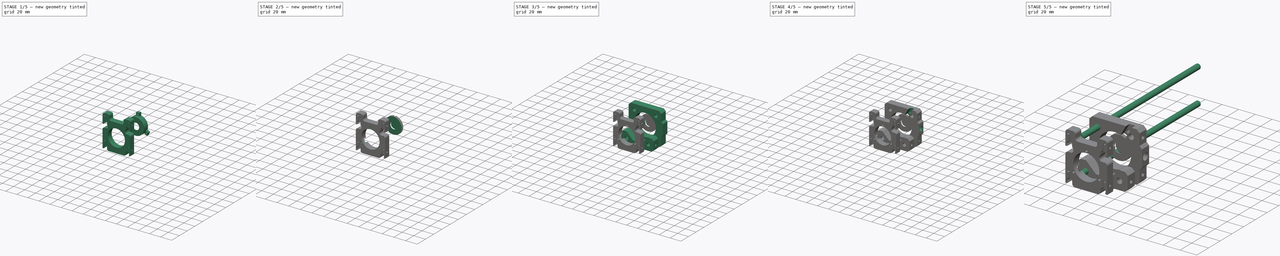
[diagram: build sequence overview — one tinted view per stage of 5, left to right]
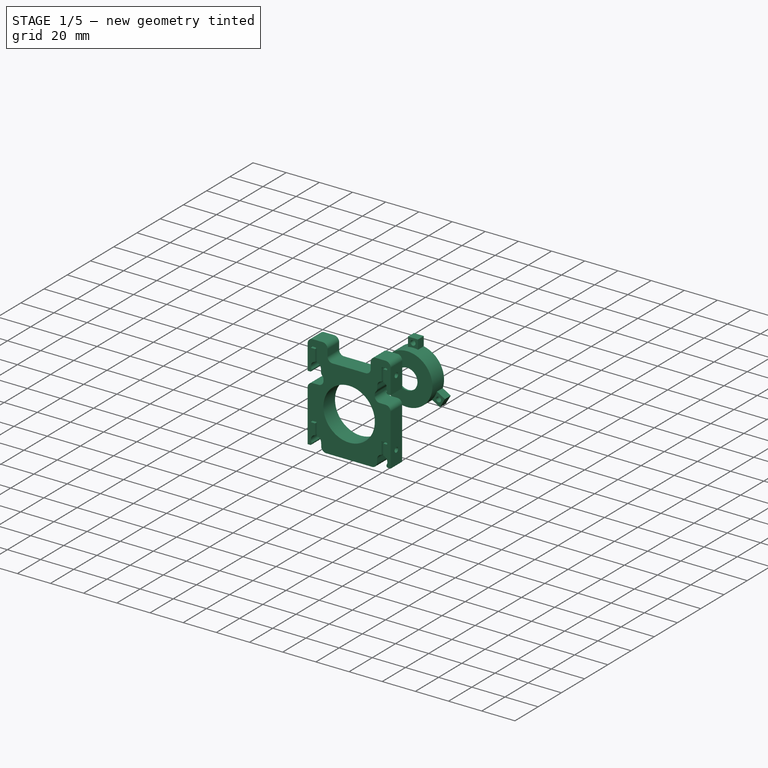
[diagram: stage 1 of 5 — iso view after this stage's code; geometry added in this stage tinted green]
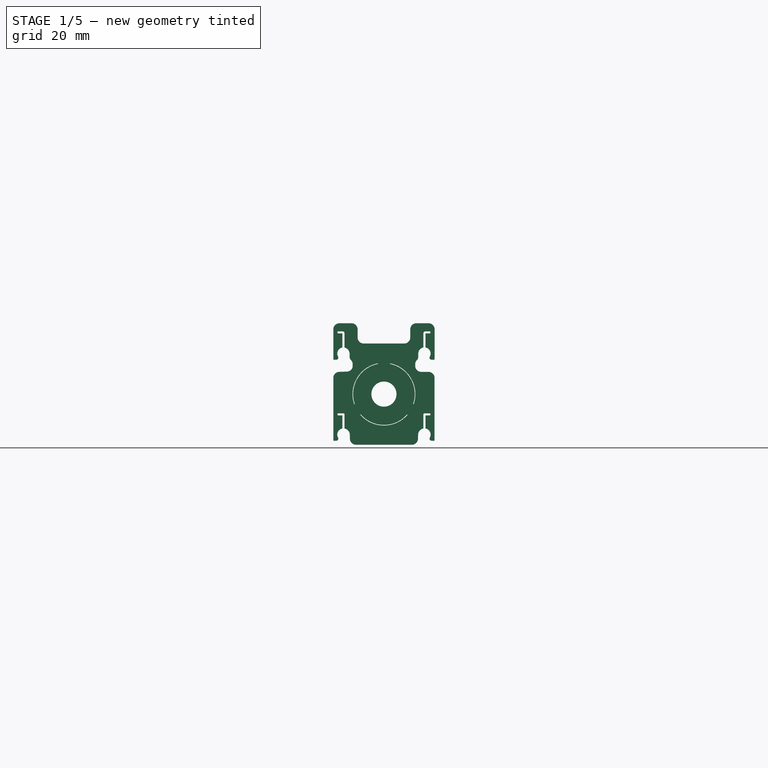
[diagram: stage 1 of 5 — front view after this stage's code; geometry added in this stage tinted green]
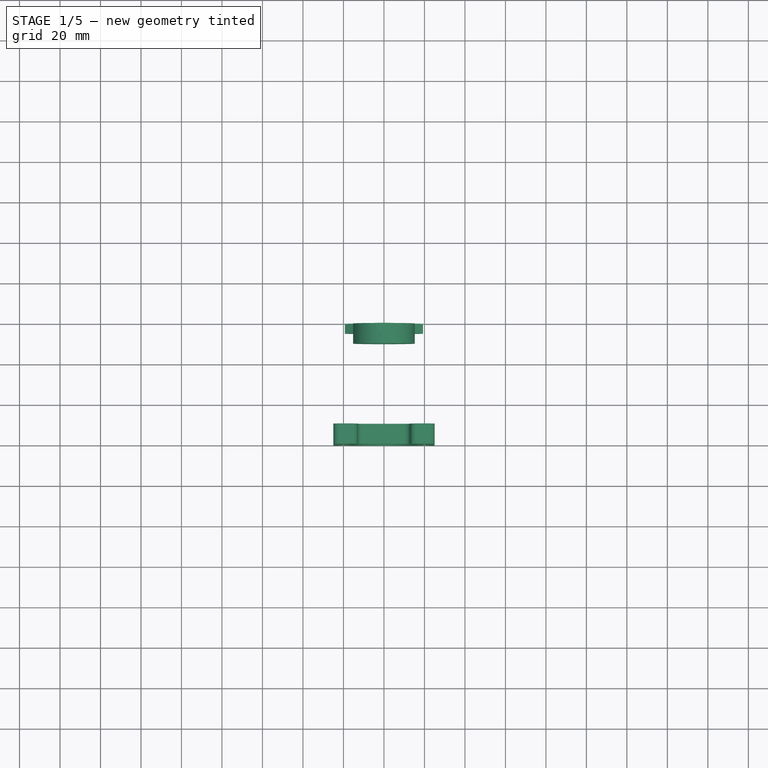
[diagram: stage 1 of 5 — top view after this stage's code; geometry added in this stage tinted green]
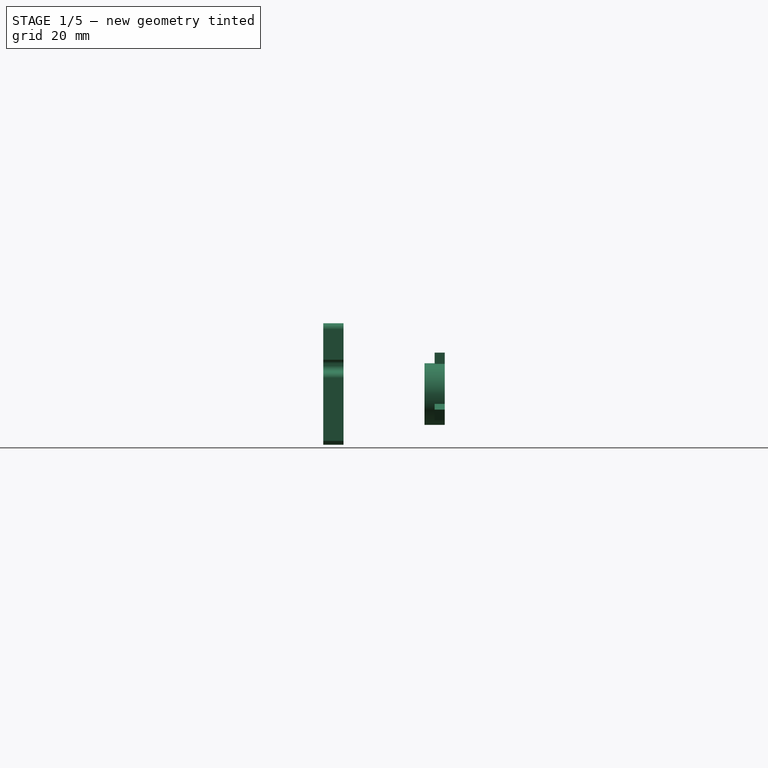
[diagram: stage 1 of 5 — right view after this stage's code; geometry added in this stage tinted green]
FCSTD DOCUMENT  (FreeCAD 0.20R29410 (Git))
Label: OpticsCageSystem
License: All rights reserved
LicenseURL: http://en.wikipedia.org/wiki/All_rights_reserved
objects: Sketcher::SketchObject×28, PartDesign::Body×14, PartDesign::Plane×12, Part::Part2DObjectPython×8, PartDesign::Pad×8, PartDesign::Pocket×7, PartDesign::Hole×7, PartDesign::FeatureBase×6, PartDesign::Fillet×3, PartDesign::Revolution×2, Part::FeaturePython×2, PartDesign::Boolean×2, Spreadsheet::Sheet×1, PartDesign::ShapeBinder×1
note: 127 computed .brp shape members not serialized (recipe doc carries the construction recipe); baked Part::Feature solids carry a one-line shape summary decoded from their .brp

FEATURE [PartDesign::Body] Body009  label="CageMountBody"
  Group = -> [DatumPlane007,Sketch010,Clone2D003,Pad003,Sketch011,Hole004,Sketch012,Hole005,Sketch013,Hole006]
  Origin = -> Origin009
  Tip = -> Hole006
FEATURE [Sketcher::SketchObject] Sketch014  label="InsertableMasterSketch1"
  FullyConstrained = true
  Placement = pos=(0,0,0) rot=(1,0,0;1.5708rad)
  expr: Constraints[11] = Spreadsheet.cagedim
  expr: Constraints[19] = Spreadsheet.roddiameter
  expr: Constraints[21] = Spreadsheet.maxopticdiameter
  expr: Constraints[33] = Spreadsheet.insertablebasedim
  sketch-geometry (15):
    g0: LineSegment StartX=20 StartY=20 StartZ=0 EndX=20 EndY=-20 EndZ=0
    g1: LineSegment StartX=20 StartY=-20 StartZ=0 EndX=-20 EndY=-20 EndZ=0
    g2: LineSegment StartX=-20 StartY=-20 StartZ=0 EndX=-20 EndY=20 EndZ=0
    g3: LineSegment StartX=-20 StartY=20 StartZ=0 EndX=20 EndY=20 EndZ=0
    g4: GeomPoint X=-9e-16 Y=-4e-16 Z=0
    g5: Circle CenterX=20 CenterY=-20 CenterZ=0 NormalX=0 NormalY=0 NormalZ=1 AngleXU=0 Radius=3
    g6: Circle CenterX=-20 CenterY=-20 CenterZ=0 NormalX=0 NormalY=0 NormalZ=1 AngleXU=0 Radius=3
    g7: Circle CenterX=20 CenterY=20 CenterZ=0 NormalX=0 NormalY=0 NormalZ=1 AngleXU=0 Radius=3
    g8: Circle CenterX=-20 CenterY=20 CenterZ=0 NormalX=0 NormalY=0 NormalZ=1 AngleXU=0 Radius=3
    g9: Circle CenterX=-9e-16 CenterY=-4e-16 CenterZ=0 NormalX=0 NormalY=0 NormalZ=1 AngleXU=0 Radius=20
    g10: LineSegment StartX=-25 StartY=25 StartZ=0 EndX=-25 EndY=-25 EndZ=0
    g11: LineSegment StartX=-25 StartY=-25 StartZ=0 EndX=25 EndY=-25 EndZ=0
    g12: LineSegment StartX=25 StartY=-25 StartZ=0 EndX=25 EndY=25 EndZ=0
    g13: LineSegment StartX=25 StartY=25 StartZ=0 EndX=-25 EndY=25 EndZ=0
    g14: GeomPoint X=-9e-16 Y=-4e-16 Z=0
  constraints (34):
    c: Coincident(g0,g1)
    c: Coincident(g1,g2)
    c: Coincident(g2,g3)
    c: Coincident(g3,g0)
    c: Horizontal(g1)
    c: Horizontal(g3)
    c: Vertical(g0)
    c: Vertical(g2)
    c: Symmetric(g1,g0,g4)
    c: Coincident(g4,g-1)
    c: Equal(g3,g0)
    c: DistanceX(g1,g1) = 40
    c: Coincident(g5,g0)
    c: Coincident(g6,g1)
    c: Coincident(g7,g0)
    c: Coincident(g8,g2)
    c: Equal(g6,g8)
    c: Equal(g8,g7)
    c: Equal(g7,g5)
    c: Diameter(g5) = 6
    c: Coincident(g9,g4)
    c: Diameter(g9) = 40
    c: Coincident(g10,g11)
    c: Coincident(g11,g12)
    c: Coincident(g12,g13)
    c: Coincident(g13,g10)
    c: Horizontal(g11)
    c: Horizontal(g13)
    c: Vertical(g10)
    c: Vertical(g12)
    c: Symmetric(g11,g10,g14)
    c: Coincident(g14,g9)
    c: Equal(g11,g12)
    c: DistanceX(g11,g11) = 50
FEATURE [PartDesign::Plane] DatumPlane008
  AttachmentOffset = pos=(0,0,50) rot=(0,0,1;0rad)
  Length = 61.0284
  MapMode = 5
  Placement = pos=(0,-50,-1.11e-14) rot=(1,0,0;1.5708rad)
  ResizeMode = 0
  Support = -> [XZ_Plane010]
  Width = 70.9633
  expr: .AttachmentOffset.Base.z = Spreadsheet.ilensmountpartoffset
FEATURE [Sketcher::SketchObject] Sketch016  label="InsertableMasterSketch2"
  FullyConstrained = false
  Placement = pos=(0,0,0) rot=(1,0,0;1.5708rad)
  expr: Constraints[123] = Spreadsheet.flexgapwidth
  expr: Constraints[124] = Spreadsheet.flexgapwidth
  expr: Constraints[127] = Spreadsheet.flexgaplength
  expr: Constraints[13] = Spreadsheet.insertablebasedim
  expr: Constraints[143] = Spreadsheet.flexgaplength
  expr: Constraints[144] = Spreadsheet.flexgapwidth
  expr: Constraints[1] = Spreadsheet.insertablemaxopticdiam
  expr: Constraints[212] = Spreadsheet.filletlarge
  expr: Constraints[228] = Spreadsheet.rodpocketdepth
  expr: Constraints[229] = Spreadsheet.rodpocketoverhang / 2
  expr: Constraints[234] = Spreadsheet.filletsmall
  expr: Constraints[23] = Spreadsheet.cagedim
  expr: Constraints[281] = Spreadsheet.filletsmall
  expr: Constraints[287] = Spreadsheet.cagedim / 2 + Spreadsheet.roddiameter / 6 + Spreadsheet.flexgaplength / 2
  expr: Constraints[31] = Spreadsheet.roddiameter + Spreadsheet.insertablerodclearance
  expr: Constraints[34] = Spreadsheet.roddiameter
  expr: Constraints[35] = Spreadsheet.rodpocketoverhang
  expr: Constraints[46] = Spreadsheet.rodpocketoverhang
  expr: Constraints[48] = Spreadsheet.flextabheight
  expr: Constraints[52] = Spreadsheet.flextabwidth
  sketch-geometry (127):
    g0: Circle CenterX=0 CenterY=0 CenterZ=0 NormalX=0 NormalY=0 NormalZ=1 AngleXU=0 Radius=15
    g1: LineSegment StartX=-25 StartY=25 StartZ=0 EndX=-25 EndY=-25 EndZ=0
    g2: LineSegment StartX=-25 StartY=-25 StartZ=0 EndX=25 EndY=-25 EndZ=0
    g3: LineSegment StartX=25 StartY=-25 StartZ=0 EndX=25 EndY=25 EndZ=0
    g4: LineSegment StartX=25 StartY=25 StartZ=0 EndX=-25 EndY=25 EndZ=0
    g5: GeomPoint X=0 Y=0 Z=0
    g6: LineSegment StartX=-20 StartY=20 StartZ=0 EndX=-20 EndY=-20 EndZ=0
    g7: LineSegment StartX=-20 StartY=-20 StartZ=0 EndX=20 EndY=-20 EndZ=0
    g8: LineSegment StartX=20 StartY=-20 StartZ=0 EndX=20 EndY=20 EndZ=0
    g9: LineSegment StartX=20 StartY=20 StartZ=0 EndX=-20 EndY=20 EndZ=0
    g10: GeomPoint X=0 Y=0 Z=0
    g11: ArcOfCircle CenterX=20 CenterY=20 CenterZ=0 NormalX=0 NormalY=0 NormalZ=1 AngleXU=0 Radius=3.05 StartAngle=1.73547 EndAngle=3.14159
    g12: ArcOfCircle CenterX=20 CenterY=-20 CenterZ=0 NormalX=0 NormalY=0 NormalZ=1 AngleXU=0 Radius=3.05 StartAngle=5.7667 EndAngle=7.6893
    g13: ArcOfCircle CenterX=-20 CenterY=-20 CenterZ=0 NormalX=0 NormalY=0 NormalZ=1 AngleXU=0 Radius=3.05 StartAngle=-9e-16 EndAngle=1.40612
    g14: ArcOfCircle CenterX=-20 CenterY=20 CenterZ=0 NormalX=0 NormalY=0 NormalZ=1 AngleXU=0 Radius=3.05 StartAngle=1.73547 EndAngle=3.65808
    g15: LineSegment StartX=11.205 StartY=17 StartZ=0 EndX=27.502 EndY=17 EndZ=0
    g16: LineSegment StartX=11.205 StartY=11 StartZ=0 EndX=27.502 EndY=11 EndZ=0
    g17: GeomPoint X=16.95 Y=20 Z=0
    g18: GeomPoint X=-16.95 Y=20 Z=0
    g19: GeomPoint X=-16.95 Y=-20 Z=0
    g20: GeomPoint X=16.95 Y=-20 Z=0
    g21: LineSegment StartX=11.205 StartY=-23 StartZ=0 EndX=27.3749 EndY=-23 EndZ=0
    g22: LineSegment StartX=-28.3334 StartY=35 StartZ=0 EndX=28.3334 EndY=35 EndZ=0
    g23: LineSegment StartX=-13 StartY=35 StartZ=0 EndX=-13 EndY=25 EndZ=0
    g24: LineSegment StartX=13 StartY=35 StartZ=0 EndX=13 EndY=25 EndZ=0
    g25: GeomPoint X=20.55 Y=17 Z=0
    g26: GeomPoint X=-20.55 Y=17 Z=0
    g27: LineSegment StartX=-10 StartY=25 StartZ=0 EndX=10 EndY=25 EndZ=0
    g28: LineSegment StartX=13 StartY=28 StartZ=0 EndX=13 EndY=32 EndZ=0
    g29: LineSegment StartX=16 StartY=35 StartZ=0 EndX=22 EndY=35 EndZ=0
    g30: LineSegment StartX=25 StartY=32 StartZ=0 EndX=25 EndY=17 EndZ=0
    g31: LineSegment StartX=25 StartY=17 StartZ=0 EndX=23.5217 EndY=17 EndZ=0
    g32: LineSegment StartX=16.95 StartY=20 StartZ=0 EndX=16.95 EndY=18.5 EndZ=0
    g33: LineSegment StartX=18.45 StartY=11 StartZ=0 EndX=22 EndY=11 EndZ=0
    g34: LineSegment StartX=25 StartY=8 StartZ=0 EndX=25 EndY=-23 EndZ=0
    g35: LineSegment StartX=25 StartY=-23 StartZ=0 EndX=23.5217 EndY=-23 EndZ=0
    g36: LineSegment StartX=16.95 StartY=-20 StartZ=0 EndX=16.95 EndY=-22 EndZ=0
    g37: LineSegment StartX=13.95 StartY=-25 StartZ=0 EndX=-13.95 EndY=-25 EndZ=0
    g38: LineSegment StartX=-13 StartY=28 StartZ=0 EndX=-13 EndY=32 EndZ=0
    g39: LineSegment StartX=-16 StartY=35 StartZ=0 EndX=-22 EndY=35 EndZ=0
    g40: LineSegment StartX=-25 StartY=32 StartZ=0 EndX=-25 EndY=17 EndZ=0
    g41: LineSegment StartX=-25 StartY=-23 StartZ=0 EndX=-23.5217 EndY=-23 EndZ=0
    g42: LineSegment StartX=-16.95 StartY=-20 StartZ=0 EndX=-16.95 EndY=-22 EndZ=0
    g43: LineSegment StartX=-16.95 StartY=20 StartZ=0 EndX=-16.95 EndY=18.5 EndZ=0
    g44: LineSegment StartX=-15.45 StartY=14.8787 StartZ=0 EndX=-15.45 EndY=14 EndZ=0
    g45: LineSegment StartX=-18.45 StartY=11 StartZ=0 EndX=-22 EndY=11 EndZ=0
    g46: LineSegment StartX=-23.5217 StartY=17 StartZ=0 EndX=-25 EndY=17 EndZ=0
    g47: LineSegment StartX=-25 StartY=8 StartZ=0 EndX=-25 EndY=-23 EndZ=0
    g48: ArcOfCircle CenterX=20.5 CenterY=30 CenterZ=0 NormalX=0 NormalY=0 NormalZ=1 AngleXU=0 Radius=1 StartAngle=1.5708 EndAngle=3.14159
    g49: LineSegment StartX=20.5 StartY=23.0087 StartZ=0 EndX=20.5 EndY=30 EndZ=0
    g50: LineSegment StartX=19.5 StartY=30 StartZ=0 EndX=19.5 EndY=23.0087 EndZ=0
    g51: ArcOfCircle CenterX=-20.5 CenterY=30 CenterZ=0 NormalX=0 NormalY=0 NormalZ=1 AngleXU=0 Radius=1 StartAngle=1.3e-15 EndAngle=1.5708
    g52: LineSegment StartX=-19.5 StartY=23.0087 StartZ=0 EndX=-19.5 EndY=30 EndZ=0
    g53: LineSegment StartX=-20.5 StartY=30 StartZ=0 EndX=-20.5 EndY=23.0087 EndZ=0
    g54: ArcOfCircle CenterX=22.5 CenterY=30.5 CenterZ=0 NormalX=0 NormalY=0 NormalZ=1 AngleXU=0 Radius=0.5 StartAngle=4.71239 EndAngle=7.85398
    g55: LineSegment StartX=20.5 StartY=30 StartZ=0 EndX=22.5 EndY=30 EndZ=0
    g56: LineSegment StartX=22.5 StartY=31 StartZ=0 EndX=20.5 EndY=31 EndZ=0
    g57: ArcOfCircle CenterX=-22.5 CenterY=30.5 CenterZ=0 NormalX=0 NormalY=0 NormalZ=1 AngleXU=0 Radius=0.5 StartAngle=1.5708 EndAngle=4.71239
    g58: LineSegment StartX=-20.5 StartY=31 StartZ=0 EndX=-22.5 EndY=31 EndZ=0
    g59: LineSegment StartX=-22.5 StartY=30 StartZ=0 EndX=-20.5 EndY=30 EndZ=0
    g60: ArcOfCircle CenterX=20 CenterY=20 CenterZ=0 NormalX=0 NormalY=0 NormalZ=1 AngleXU=0 Radius=3.05 StartAngle=5.7667 EndAngle=7.6893
    g61: ArcOfCircle CenterX=-20 CenterY=20 CenterZ=0 NormalX=0 NormalY=0 NormalZ=1 AngleXU=0 Radius=3.05 StartAngle=6e-16 EndAngle=1.40612
    g62: ArcOfCircle CenterX=20 CenterY=-10 CenterZ=0 NormalX=0 NormalY=0 NormalZ=1 AngleXU=0 Radius=0.5 StartAngle=1.5708 EndAngle=3.14159
    g63: LineSegment StartX=20.5 StartY=-16.9913 StartZ=0 EndX=20.5 EndY=-10.5 EndZ=0
    g64: LineSegment StartX=19.5 StartY=-10 StartZ=0 EndX=19.5 EndY=-16.9913 EndZ=0
    g65: ArcOfCircle CenterX=-20 CenterY=-10 CenterZ=0 NormalX=0 NormalY=0 NormalZ=1 AngleXU=0 Radius=0.5 StartAngle=4e-16 EndAngle=1.5708
    g66: LineSegment StartX=-19.5 StartY=-16.9913 StartZ=0 EndX=-19.5 EndY=-10 EndZ=0
    g67: LineSegment StartX=-20.5 StartY=-10.5 StartZ=0 EndX=-20.5 EndY=-16.9913 EndZ=0
    g68: ArcOfCircle CenterX=-20 CenterY=-10 CenterZ=0 NormalX=0 NormalY=0 NormalZ=1 AngleXU=0 Radius=0.5 StartAngle=6.2831 EndAngle=7.85398
    g69: ArcOfCircle CenterX=-22.5 CenterY=-10 CenterZ=0 NormalX=0 NormalY=0 NormalZ=1 AngleXU=0 Radius=0.5 StartAngle=1.5708 EndAngle=4.71239
    g70: LineSegment StartX=-20 StartY=-9.5 StartZ=0 EndX=-22.5 EndY=-9.5 EndZ=0
    g71: LineSegment StartX=-22.5 StartY=-10.5 StartZ=0 EndX=-20.5 EndY=-10.5 EndZ=0
    g72: ArcOfCircle CenterX=20 CenterY=-10 CenterZ=0 NormalX=0 NormalY=0 NormalZ=1 AngleXU=0 Radius=0.5 StartAngle=1.5708 EndAngle=3.13669
    g73: ArcOfCircle CenterX=22.5 CenterY=-10 CenterZ=0 NormalX=0 NormalY=0 NormalZ=1 AngleXU=0 Radius=0.5 StartAngle=4.71239 EndAngle=7.85398
    g74: LineSegment StartX=20.5 StartY=-10.5 StartZ=0 EndX=22.5 EndY=-10.5 EndZ=0
    g75: LineSegment StartX=22.5 StartY=-9.5 StartZ=0 EndX=20 EndY=-9.5 EndZ=0
    g76: ArcOfCircle CenterX=-20 CenterY=-20 CenterZ=0 NormalX=0 NormalY=0 NormalZ=1 AngleXU=0 Radius=3.05 StartAngle=1.73547 EndAngle=3.65808
    g77: ArcOfCircle CenterX=20 CenterY=-20 CenterZ=0 NormalX=0 NormalY=0 NormalZ=1 AngleXU=0 Radius=3.05 StartAngle=1.73547 EndAngle=3.14159
    g78: ArcOfCircle CenterX=22 CenterY=32 CenterZ=0 NormalX=0 NormalY=0 NormalZ=1 AngleXU=0 Radius=3 StartAngle=-9e-16 EndAngle=1.5708
    g79: GeomPoint X=25 Y=35 Z=0
    g80: ArcOfCircle CenterX=16 CenterY=32 CenterZ=0 NormalX=0 NormalY=0 NormalZ=1 AngleXU=0 Radius=3 StartAngle=1.5708 EndAngle=3.14159
    g81: GeomPoint X=13 Y=35 Z=0
    g82: ArcOfCircle CenterX=10 CenterY=28 CenterZ=0 NormalX=0 NormalY=0 NormalZ=1 AngleXU=0 Radius=3 StartAngle=4.71239 EndAngle=6.28319
    g83: GeomPoint X=13 Y=25 Z=0
    g84: ArcOfCircle CenterX=-10 CenterY=28 CenterZ=0 NormalX=0 NormalY=0 NormalZ=1 AngleXU=0 Radius=3 StartAngle=3.14159 EndAngle=4.71239
    g85: GeomPoint X=-13 Y=25 Z=0
    g86: ArcOfCircle CenterX=-16 CenterY=32 CenterZ=0 NormalX=0 NormalY=0 NormalZ=1 AngleXU=0 Radius=3 StartAngle=3e-16 EndAngle=1.5708
    g87: GeomPoint X=-13 Y=35 Z=0
    g88: ArcOfCircle CenterX=-22 CenterY=32 CenterZ=0 NormalX=0 NormalY=0 NormalZ=1 AngleXU=0 Radius=3 StartAngle=1.5708 EndAngle=3.14159
    g89: GeomPoint X=-25 Y=35 Z=0
    g90: ArcOfCircle CenterX=22 CenterY=8 CenterZ=0 NormalX=0 NormalY=0 NormalZ=1 AngleXU=0 Radius=3 StartAngle=0 EndAngle=1.5708
    g91: GeomPoint X=25 Y=11 Z=0
    g92: ArcOfCircle CenterX=-22 CenterY=8 CenterZ=0 NormalX=0 NormalY=0 NormalZ=1 AngleXU=0 Radius=3 StartAngle=1.5708 EndAngle=3.14159
    g93: GeomPoint X=-25 Y=11 Z=0
    g94: ArcOfCircle CenterX=13.95 CenterY=-22 CenterZ=0 NormalX=0 NormalY=0 NormalZ=1 AngleXU=0 Radius=3 StartAngle=4.71239 EndAngle=6.28319
    g95: GeomPoint X=16.95 Y=-25 Z=0
    g96: ArcOfCircle CenterX=-13.95 CenterY=-22 CenterZ=0 NormalX=0 NormalY=0 NormalZ=1 AngleXU=0 Radius=3 StartAngle=3.14159 EndAngle=4.71239
    g97: GeomPoint X=-16.95 Y=-25 Z=0
    g98: ArcOfCircle CenterX=-18.45 CenterY=14 CenterZ=0 NormalX=0 NormalY=0 NormalZ=1 AngleXU=0 Radius=3 StartAngle=4.71239 EndAngle=6.28319
    g99: ArcOfCircle CenterX=-14.3893 CenterY=18.5 CenterZ=0 NormalX=0 NormalY=0 NormalZ=1 AngleXU=0 Radius=2.56066 StartAngle=3.14159 EndAngle=3.92699
    g100: ArcOfCircle CenterX=-18.0107 CenterY=14.8787 CenterZ=0 NormalX=0 NormalY=0 NormalZ=1 AngleXU=0 Radius=2.56066 StartAngle=0 EndAngle=0.785398
    g101: LineSegment StartX=15.45 StartY=21.664 StartZ=0 EndX=15.45 EndY=7.57312 EndZ=0
    g102: ArcOfCircle CenterX=23.5217 CenterY=18 CenterZ=0 NormalX=0 NormalY=0 NormalZ=1 AngleXU=0 Radius=1 StartAngle=2.62511 EndAngle=4.71239
    g103: ArcOfCircle CenterX=-23.5217 CenterY=18 CenterZ=0 NormalX=0 NormalY=0 NormalZ=1 AngleXU=0 Radius=1 StartAngle=4.71239 EndAngle=6.79967
    g104: ArcOfCircle CenterX=23.5217 CenterY=-22 CenterZ=0 NormalX=0 NormalY=0 NormalZ=1 AngleXU=0 Radius=1 StartAngle=2.62511 EndAngle=4.71239
    g105: ArcOfCircle CenterX=-23.5217 CenterY=-22 CenterZ=0 NormalX=0 NormalY=0 NormalZ=1 AngleXU=0 Radius=1 StartAngle=4.71239 EndAngle=6.79967
    g106: LineSegment StartX=15.2961 StartY=19.0046 StartZ=0 EndX=16.2 EndY=19.0046 EndZ=0
    g107: LineSegment StartX=16.2 StartY=19.0046 StartZ=0 EndX=16.95 EndY=18.5 EndZ=0
    g108: LineSegment StartX=15.45 StartY=14.8787 StartZ=0 EndX=15.45 EndY=14 EndZ=0
    g109: ArcOfCircle CenterX=14.3893 CenterY=18.5 CenterZ=0 NormalX=0 NormalY=0 NormalZ=1 AngleXU=0 Radius=2.56066 StartAngle=5.49779 EndAngle=6.28319
    g110: GeomPoint X=16.8 Y=17 Z=0
    g111: ArcOfCircle CenterX=18.0107 CenterY=14.8787 CenterZ=0 NormalX=0 NormalY=0 NormalZ=1 AngleXU=0 Radius=2.56066 StartAngle=2.35619 EndAngle=3.14159
    g112: GeomPoint X=15.45 Y=17.4088 Z=0
    g113: LineSegment StartX=16.2 StartY=19.0046 StartZ=0 EndX=16.2 EndY=14.53 EndZ=0
    g114: ArcOfCircle CenterX=18.45 CenterY=14 CenterZ=0 NormalX=0 NormalY=0 NormalZ=1 AngleXU=0 Radius=3 StartAngle=3.14159 EndAngle=4.71239
    g115: GeomPoint X=15.45 Y=11 Z=0
    g116: LineSegment StartX=16.2 StartY=16.6893 StartZ=0 EndX=18.0107 EndY=14.8787 EndZ=0
    g117: LineSegment StartX=14.3893 StartY=18.5 StartZ=0 EndX=16.2 EndY=16.6893 EndZ=0
    g118: LineSegment StartX=-30.0912 StartY=26 StartZ=0 EndX=30.0912 EndY=26 EndZ=0
    g119: LineSegment StartX=22.1858 StartY=27.5 StartZ=0 EndX=22.1858 EndY=24.5 EndZ=0
    g120: LineSegment StartX=-30.0912 StartY=-14.67 StartZ=0 EndX=30.0912 EndY=-14.67 EndZ=0
    g121: LineSegment StartX=32.3222 StartY=-10.5 StartZ=0 EndX=32.3222 EndY=-13.7456 EndZ=0
    g122: LineSegment StartX=32.3222 StartY=-13.7456 StartZ=0 EndX=32.3222 EndY=-16.9913 EndZ=0
    g123: LineSegment StartX=0 StartY=46.8208 StartZ=0 EndX=0 EndY=0 EndZ=0
    g124: LineSegment StartX=0 StartY=0 StartZ=0 EndX=40.548 EndY=-23.4104 EndZ=0
    g125: LineSegment StartX=0 StartY=0 StartZ=0 EndX=-40.548 EndY=-23.4104 EndZ=0
    g126: Circle CenterX=0 CenterY=0 CenterZ=0 NormalX=0 NormalY=0 NormalZ=1 AngleXU=0 Radius=46.8208
  constraints (312):
    c: Coincident(g0,g-1)
    c: Diameter(g0) = 30
    c: Coincident(g1,g2)
    c: Coincident(g2,g3)
    c: Coincident(g3,g4)
    c: Coincident(g4,g1)
    c: Horizontal(g2)
    c: Horizontal(g4)
    c: Vertical(g1)
    c: Vertical(g3)
    c: Symmetric(g2,g1,g5)
    c: Coincident(g5,g0)
    c: Equal(g3,g2)
    c: DistanceX(g2,g2) = 50
    c: Coincident(g6,g7)
    c: Coincident(g7,g8)
    c: Coincident(g8,g9)
    c: Coincident(g9,g6)
    c: Horizontal(g7)
    c: Horizontal(g9)
    c: Vertical(g8)
    c: Coincident(g10,g0)
    c: Equal(g7,g8)
    c: DistanceX(g7,g7) = 40
    c: Coincident(g11,g8)
    c: Coincident(g12,g7)
    c: Coincident(g13,g6)
    c: Coincident(g14,g6)
    c: Equal(g14,g11)
    c: Equal(g11,g13)
    c: Equal(g13,g12)
    c: Diameter(g12) = 6.1
    c: Horizontal(g15)
    c: Vertical(g15,g16)
    c: DistanceY(g16,g15) = 6
    c: DistanceY(g15,g11) = 3
    c: PointOnObject(g17,g9)
    c: PointOnObject(g17,g11)
    c: PointOnObject(g18,g9)
    c: PointOnObject(g18,g14)
    c: PointOnObject(g19,g7)
    c: PointOnObject(g20,g7)
    c: PointOnObject(g19,g13)
    c: PointOnObject(g20,g12)
    c: Horizontal(g21)
    c: Vertical(g16,g21)
    c: DistanceY(g21,g12) = 3
    c: Symmetric(g22,g22,g-2)
    c: DistanceY(g3,g22) = 10
    c: Vertical(g23)
    c: Vertical(g24)
    c: Equal(g23,g24)
    c: DistanceX(g24,g3) = 12
    c: Symmetric(g24,g23,g-2)
    c: PointOnObject(g25,g15)
    c: PointOnObject(g26,g15)
    c: PointOnObject(g26,g14)
    c: PointOnObject(g25,g11)
    c: Horizontal(g16)
    c: PointOnObject(g85,g4)
    c: PointOnObject(g83,g24)
    c: Horizontal(g27)
    c: PointOnObject(g81,g22)
    c: Vertical(g28)
    c: PointOnObject(g79,g22)
    c: PointOnObject(g30,g3)
    c: Vertical(g30)
    c: Coincident(g30,g31)
    c: Horizontal(g31)
    c: Coincident(g32,g17)
    c: Vertical(g32)
    c: PointOnObject(g91,g3)
    c: PointOnObject(g34,g21)
    c: Vertical(g34)
    c: Coincident(g34,g35)
    c: Coincident(g36,g20)
    c: PointOnObject(g95,g2)
    c: Vertical(g36)
    c: PointOnObject(g97,g2)
    c: PointOnObject(g87,g22)
    c: Vertical(g38)
    c: Vertical(g40)
    c: Coincident(g47,g41)
    c: Horizontal(g41)
    c: Coincident(g42,g19)
    c: Vertical(g42)
    c: Coincident(g43,g18)
    c: Horizontal(g45)
    c: Horizontal(g46)
    c: Coincident(g40,g46)
    c: PointOnObject(g87,g23)
    c: Symmetric(g89,g79,g-2)
    c: PointOnObject(g93,g1)
    c: Symmetric(g34,g41,g-2)
    c: Tangent(g48,g50) = -1.5708
    c: Vertical(g49)
    c: Tangent(g52,g51) = -1.5708
    c: Vertical(g52)
    c: Equal(g51,g48)
    c: Horizontal(g51,g48)
    c: Tangent(g55,g54) = -1.5708
    c: Tangent(g54,g56) = -1.5708
    c: Horizontal(g55)
    c: Tangent(g58,g57) = -1.5708
    c: Tangent(g57,g59) = -1.5708
    c: Horizontal(g58)
    c: Equal(g58,g56)
    c: Coincident(g49,g55)
    c: Horizontal(g56)
    c: Vertical(g50)
    c: Coincident(g53,g59)
    c: Vertical(g53)
    c: Horizontal(g59)
    c: Coincident(g60,g49)
    c: Coincident(g11,g50)
    c: Coincident(g61,g52)
    c: Coincident(g14,g53)
    c: PointOnObject(g11,g9)
    c: Coincident(g11,g60)
    c: Coincident(g14,g61)
    c: PointOnObject(g61,g9)
    c: PointOnObject(g77,g7)
    c: PointOnObject(g13,g7)
    c: DistanceX(g11,g49) = 1
    c: DistanceY(g54,g54) = 1
    c: Symmetric(g52,g11,g-2)
    c: Symmetric(g14,g49,g-2)
    c: DistanceY(g11,g48) = 10
    c: Tangent(g62,g64) = -1.5708
    c: PointOnObject(g62,g8)
    c: Tangent(g66,g65) = -1.5708
    c: Tangent(g68,g70) = -1.5708
    c: Tangent(g70,g69) = -1.5708
    c: Tangent(g69,g71) = -1.5708
    c: Equal(g68,g69)
    c: Coincident(g68,g65)
    c: Horizontal(g70)
    c: Tangent(g74,g73) = -1.5708
    c: Tangent(g73,g75) = -1.5708
    c: Tangent(g75,g72) = -1.5708
    c: Equal(g72,g73)
    c: Coincident(g72,g62)
    c: Horizontal(g74)
    c: DistanceY(g12,g62) = 10
    c: DistanceY(g73,g73) = 1
    c: Equal(g73,g69)
    c: Symmetric(g73,g69,g-2)
    c: Vertical(g54,g73)
    c: DistanceX(g48,g54) = 2
    c: Symmetric(g11,g49,g8)
    c: Symmetric(g14,g13,g-1)
    c: PointOnObject(g62,g8)
    c: Coincident(g74,g63)
    c: PointOnObject(g72,g62)
    c: Equal(g13,g76)
    c: Coincident(g13,g66)
    c: Coincident(g13,g76)
    c: PointOnObject(g76,g67)
    c: PointOnObject(g68,g65)
    c: Coincident(g67,g71)
    c: PointOnObject(g65,g6)
    c: Equal(g12,g77)
    c: Coincident(g12,g63)
    c: Coincident(g12,g77)
    c: PointOnObject(g77,g64)
    c: Vertical(g63)
    c: Vertical(g49,g12)
    c: Vertical(g64,g11)
    c: Horizontal(g75)
    c: Symmetric(g12,g67,g-2)
    c: Symmetric(g13,g64,g-2)
    c: Vertical(g67)
    c: Horizontal(g71)
    c: Vertical(g66)
    c: PointOnObject(g79,g30)
    c: PointOnObject(g79,g29)
    c: Tangent(g30,g78) = 1.5708
    c: Tangent(g29,g78) = 1.5708
    c: PointOnObject(g81,g29)
    c: PointOnObject(g81,g28)
    c: Tangent(g29,g80) = 1.5708
    c: Tangent(g28,g80) = 1.5708
    c: PointOnObject(g83,g28)
    c: PointOnObject(g83,g27)
    c: Tangent(g28,g82) = -1.5708
    c: Tangent(g27,g82) = -1.5708
    c: PointOnObject(g85,g27)
    c: PointOnObject(g85,g38)
    c: Tangent(g27,g84) = -1.5708
    c: Tangent(g38,g84) = 1.5708
    c: PointOnObject(g87,g38)
    c: PointOnObject(g87,g39)
    c: Tangent(g38,g86) = -1.5708
    c: Tangent(g39,g86) = -1.5708
    c: PointOnObject(g89,g39)
    c: PointOnObject(g89,g40)
    c: Tangent(g39,g88) = -1.5708
    c: Tangent(g40,g88) = -1.5708
    c: PointOnObject(g91,g33)
    c: PointOnObject(g91,g34)
    c: Tangent(g33,g90) = 1.5708
    c: Tangent(g34,g90) = 1.5708
    c: PointOnObject(g93,g45)
    c: Tangent(g45,g92) = -1.5708
    c: Tangent(g47,g92) = -1.5708
    c: Equal(g92,g90)
    c: Equal(g90,g88)
    c: Equal(g88,g86)
    c: Equal(g86,g84)
    c: Equal(g84,g82)
    c: Equal(g82,g80)
    c: Equal(g80,g78)
    c: Radius(g90) = 3
    c: PointOnObject(g95,g36)
    c: PointOnObject(g95,g37)
    c: Tangent(g36,g94) = 1.5708
    c: Tangent(g37,g94) = 1.5708
    c: PointOnObject(g97,g37)
    c: PointOnObject(g97,g42)
    c: Tangent(g37,g96) = 1.5708
    c: Tangent(g42,g96) = -1.5708
    c: Equal(g96,g94)
    c: Equal(g94,g90)
    c: Vertical(g44)
    c: Tangent(g99,g43) = -1.5708
    c: Vertical(g43)
    c: Tangent(g100,g44) = 1.5708
    c: Vertical(g101)
    c: DistanceX(g101,g11) = 1.5
    c: DistanceY(g32,g32) = 1.5
    c: Tangent(g98,g45) = 1.5708
    c: Tangent(g98,g44) = 1.5708
    c: Tangent(g60,g102) = 1.5708
    c: Tangent(g31,g102) = 1.5708
    c: Radius(g102) = 1
    c: Tangent(g14,g103) = 1.5708
    c: Tangent(g46,g103) = 1.5708
    c: Tangent(g12,g104) = 1.5708
    c: Tangent(g35,g104) = 1.5708
    c: Equal(g104,g102)
    c: Horizontal(g35)
    c: Tangent(g76,g105) = 1.5708
    c: Tangent(g41,g105) = -1.5708
    c: Equal(g105,g104)
    c: PointOnObject(g115,g101)
    c: Horizontal(g106)
    c: Coincident(g106,g107)
    c: Coincident(g107,g32)
    c: Equal(g106,g107)
    c: PointOnObject(g110,g15)
    c: PointOnObject(g112,g101)
    c: PointOnObject(g112,g108)
    c: Tangent(g108,g111) = -1.5708
    c: Coincident(g109,g111)
    c: Coincident(g113,g106)
    c: Vertical(g113)
    c: PointOnObject(g109,g113)
    c: PointOnObject(g115,g108)
    c: PointOnObject(g115,g33)
    c: Tangent(g108,g114) = -1.5708
    c: Tangent(g33,g114) = -1.5708
    c: Equal(g90,g114)
    c: Coincident(g116,g111)
    c: Coincident(g117,g109)
    c: Coincident(g117,g109)
    c: Parallel(g117,g116)
    c: Equal(g117,g116)
    c: Coincident(g116,g109)
    c: Angle(g101,g117) = 0.785398
    c: Equal(g43,g32)
    c: Tangent(g99,g100) = 1.5708
    c: Symmetric(g34,g47,g-2)
    c: Symmetric(g31,g46,g-2)
    c: PointOnObject(g30,g15)
    c: Symmetric(g45,g33,g-2)
    c: Symmetric(g111,g100,g-2)
    c: Equal(g99,g109)
    c: DistanceX(g-1,g16) = 11.205
    c: Equal(g15,g16)
    c: PointOnObject(g33,g16)
    c: DistanceX(g16,g16) = 16.297
    c: Radius(g48) = 1
    c: Tangent(g56,g48) = -1.5708
    c: PointOnObject(g24,g4)
    c: PointOnObject(g24,g22)
    c: Tangent(g109,g32) = 1.5708
    c: Tangent(g58,g51) = -1.5708
    c: DistanceY(g0,g118) = 26
    c: DistanceY(g119,g119) = 3
    c: Symmetric(g119,g119,g118)
    c: Horizontal(g120)
    c: Equal(g118,g120)
    c: Vertical(g118,g120)
    c: Symmetric(g118,g118,g-2)
    c: Vertical(g121)
    c: Coincident(g121,g122)
    c: Vertical(g122)
    c: Horizontal(g12,g122)
    c: Horizontal(g63,g121)
    c: Equal(g121,g122)
    c: PointOnObject(g123,g-2)
    c: Coincident(g123,g0)
    c: Coincident(g124,g0)
    c: Coincident(g125,g0)
    c: Angle(g124,g123) = 2.0944
    c: Angle(g123,g125) = 2.0944
    c: Coincident(g126,g0)
    c: PointOnObject(g124,g126)
    c: PointOnObject(g125,g126)
    c: PointOnObject(g123,g126)
    c: Horizontal(g48,g53)
    c: DistanceY(g120,g0) = 14.67
FEATURE [Part::Part2DObjectPython] Clone2D005  label="InsertableMasterSketch2 (2D)"  # Draft 2D object (typed FeaturePython)
  Fuse = false
  Objects = -> [Sketch016]
  Placement = pos=(0,0,0) rot=(1,0,0;1.5708rad)
  Scale = (1,1,1)
FEATURE [Sketcher::SketchObject] Sketch017
  ExternalGeometry = -> [Clone2D005]
  FullyConstrained = false
  MapMode = 5
  Placement = pos=(0,-50,-1.11e-14) rot=(1,0,0;1.5708rad)
  Support = -> [DatumPlane008]
  expr: Constraints[138] = Spreadsheet.insertablemaxopticdiam + 1mm
  sketch-geometry (76):
    g0: LineSegment StartX=25.0645 StartY=31.9918 StartZ=0 EndX=25 EndY=17 EndZ=0
    g1: LineSegment StartX=25 StartY=17 StartZ=0 EndX=23.5217 EndY=17 EndZ=0
    g2: ArcOfCircle CenterX=23.5217 CenterY=18 CenterZ=0 NormalX=0 NormalY=0 NormalZ=1 AngleXU=0 Radius=1 StartAngle=2.62716 EndAngle=4.71239
    g3: ArcOfCircle CenterX=19.9908 CenterY=19.9956 CenterZ=0 NormalX=0 NormalY=0 NormalZ=1 AngleXU=0 Radius=3.05583 StartAngle=5.76875 EndAngle=7.68658
    g4: LineSegment StartX=20.5 StartY=23.0087 StartZ=0 EndX=20.5 EndY=30 EndZ=0
    g5: LineSegment StartX=20.5 StartY=30 StartZ=0 EndX=22.5 EndY=30 EndZ=0
    g6: ArcOfCircle CenterX=22.5 CenterY=30.5 CenterZ=0 NormalX=0 NormalY=0 NormalZ=1 AngleXU=0 Radius=0.5 StartAngle=4.71239 EndAngle=7.85398
    g7: LineSegment StartX=22.5 StartY=31 StartZ=0 EndX=20.5 EndY=31 EndZ=0
    g8: ArcOfCircle CenterX=20.5 CenterY=30 CenterZ=0 NormalX=0 NormalY=0 NormalZ=1 AngleXU=0 Radius=1 StartAngle=1.5708 EndAngle=3.14159
    g9: LineSegment StartX=19.5 StartY=30 StartZ=0 EndX=19.5 EndY=23.0087 EndZ=0
    g10: LineSegment StartX=16.95 StartY=19.9991 StartZ=0 EndX=16.95 EndY=18.9999 EndZ=0
    g11: LineSegment StartX=25 StartY=-23 StartZ=0 EndX=23.5217 EndY=-23 EndZ=0
    g12: ArcOfCircle CenterX=19.989 CenterY=-20.0055 CenterZ=0 NormalX=0 NormalY=0 NormalZ=1 AngleXU=0 Radius=3.05724 StartAngle=5.76355 EndAngle=7.68604
    g13: LineSegment StartX=20.5 StartY=-16.9913 StartZ=0 EndX=20.5 EndY=-10.5 EndZ=0
    g14: LineSegment StartX=20.5 StartY=-10.5 StartZ=0 EndX=22.5 EndY=-10.5 EndZ=0
    g15: ArcOfCircle CenterX=22.5 CenterY=-10 CenterZ=0 NormalX=0 NormalY=0 NormalZ=1 AngleXU=0 Radius=0.5 StartAngle=4.71239 EndAngle=7.85398
    g16: LineSegment StartX=22.5 StartY=-9.5 StartZ=0 EndX=20 EndY=-9.5 EndZ=0
    g17: ArcOfCircle CenterX=20 CenterY=-10 CenterZ=0 NormalX=0 NormalY=0 NormalZ=1 AngleXU=0 Radius=0.5 StartAngle=1.5708 EndAngle=3.13669
    g18: LineSegment StartX=19.5 StartY=-9.99755 StartZ=0 EndX=19.5 EndY=-16.9913 EndZ=0
    g19: LineSegment StartX=16.8745 StartY=-20 StartZ=0 EndX=16.8107 EndY=-22.0817 EndZ=0
    g20: ArcOfCircle CenterX=13.8 CenterY=-21.9893 CenterZ=0 NormalX=0 NormalY=0 NormalZ=1 AngleXU=0 Radius=3.01207 StartAngle=4.71239 EndAngle=6.25252
    g21: LineSegment StartX=13.8 StartY=-25.0014 StartZ=0 EndX=-13.8002 EndY=-25 EndZ=0
    g22: ArcOfCircle CenterX=-13.8 CenterY=-22 CenterZ=0 NormalX=0 NormalY=0 NormalZ=1 AngleXU=0 Radius=3 StartAngle=3.14159 EndAngle=4.71234
    g23: LineSegment StartX=-16.8 StartY=-22 StartZ=0 EndX=-16.8635 EndY=-20 EndZ=0
    g24: ArcOfCircle CenterX=-20.0125 CenterY=-20.0999 CenterZ=0 NormalX=0 NormalY=0 NormalZ=1 AngleXU=0 Radius=3.1506 StartAngle=0.0317161 EndAngle=1.40741
    g25: LineSegment StartX=-19.5 StartY=-16.9913 StartZ=0 EndX=-19.5 EndY=-10 EndZ=0
    g26: ArcOfCircle CenterX=-20 CenterY=-10 CenterZ=0 NormalX=0 NormalY=0 NormalZ=1 AngleXU=0 Radius=0.5 StartAngle=-9e-16 EndAngle=1.5708
    g27: LineSegment StartX=-20 StartY=-9.5 StartZ=0 EndX=-22.5 EndY=-9.5 EndZ=0
    g28: ArcOfCircle CenterX=-22.5 CenterY=-10 CenterZ=0 NormalX=0 NormalY=0 NormalZ=1 AngleXU=0 Radius=0.5 StartAngle=1.5708 EndAngle=4.71239
    g29: LineSegment StartX=-22.5 StartY=-10.5 StartZ=0 EndX=-20.5 EndY=-10.5 EndZ=0
    g30: LineSegment StartX=-20.5 StartY=-10.5 StartZ=0 EndX=-20.5 EndY=-16.9913 EndZ=0
    g31: LineSegment StartX=-25 StartY=-23 StartZ=0 EndX=-25.002 EndY=7.99981 EndZ=0
    g32: ArcOfCircle CenterX=-22 CenterY=8 CenterZ=0 NormalX=0 NormalY=0 NormalZ=1 AngleXU=0 Radius=3.00196 StartAngle=1.6053 EndAngle=3.14166
    g33: LineSegment StartX=-22.1035 StartY=11.0002 StartZ=0 EndX=-18.2999 EndY=11.1315 EndZ=0
    g34: ArcOfCircle CenterX=-20.1903 CenterY=19.8387 CenterZ=0 NormalX=0 NormalY=0 NormalZ=1 AngleXU=0 Radius=3.24435 StartAngle=0.0497432 EndAngle=1.35638
    g35: LineSegment StartX=-19.5 StartY=23.0087 StartZ=0 EndX=-19.4817 EndY=30.0024 EndZ=0
    g36: ArcOfCircle CenterX=-20.477 CenterY=30.005 CenterZ=0 NormalX=0 NormalY=0 NormalZ=1 AngleXU=0 Radius=0.995259 StartAngle=6.28057 EndAngle=7.87713
    g37: LineSegment StartX=-20.5 StartY=31 StartZ=0 EndX=-22.5 EndY=31 EndZ=0
    g38: ArcOfCircle CenterX=-22.5 CenterY=30.5 CenterZ=0 NormalX=0 NormalY=0 NormalZ=1 AngleXU=0 Radius=0.5 StartAngle=1.5708 EndAngle=4.71239
    g39: LineSegment StartX=-22.5 StartY=30 StartZ=0 EndX=-20.5 EndY=30 EndZ=0
    g40: LineSegment StartX=-25 StartY=17 StartZ=0 EndX=-23.5217 EndY=17 EndZ=0
    g41: ArcOfCircle CenterX=-23.5217 CenterY=18 CenterZ=0 NormalX=0 NormalY=0 NormalZ=1 AngleXU=0 Radius=1 StartAngle=4.71239 EndAngle=6.79967
    g42: ArcOfCircle CenterX=-20 CenterY=20 CenterZ=0 NormalX=0 NormalY=0 NormalZ=1 AngleXU=0 Radius=3.05 StartAngle=1.73547 EndAngle=3.65808
    g43: LineSegment StartX=-25 StartY=17 StartZ=0 EndX=-25 EndY=32 EndZ=0
    g44: LineSegment StartX=-20.5 StartY=30 StartZ=0 EndX=-20.5 EndY=23.0087 EndZ=0
    g45: ArcOfCircle CenterX=-22 CenterY=32 CenterZ=0 NormalX=0 NormalY=0 NormalZ=1 AngleXU=0 Radius=3 StartAngle=1.5708 EndAngle=3.14159
    g46: LineSegment StartX=-22 StartY=35 StartZ=0 EndX=-16 EndY=35 EndZ=0
    g47: ArcOfCircle CenterX=-16 CenterY=32 CenterZ=0 NormalX=0 NormalY=0 NormalZ=1 AngleXU=0 Radius=3 StartAngle=1.6e-15 EndAngle=1.5708
    g48: LineSegment StartX=-13 StartY=32 StartZ=0 EndX=-13 EndY=28 EndZ=0
    g49: ArcOfCircle CenterX=-10 CenterY=28 CenterZ=0 NormalX=0 NormalY=0 NormalZ=1 AngleXU=0 Radius=3 StartAngle=3.14159 EndAngle=4.71239
    g50: LineSegment StartX=-10 StartY=25 StartZ=0 EndX=10 EndY=25 EndZ=0
    g51: ArcOfCircle CenterX=10 CenterY=28 CenterZ=0 NormalX=0 NormalY=0 NormalZ=1 AngleXU=0 Radius=3 StartAngle=4.71239 EndAngle=6.28319
    g52: LineSegment StartX=13 StartY=28 StartZ=0 EndX=13 EndY=32 EndZ=0
    g53: ArcOfCircle CenterX=16 CenterY=32 CenterZ=0 NormalX=0 NormalY=0 NormalZ=1 AngleXU=0 Radius=3 StartAngle=1.5708 EndAngle=3.14159
    g54: LineSegment StartX=16 StartY=35 StartZ=0 EndX=22 EndY=35 EndZ=0
    g55: ArcOfCircle CenterX=22 CenterY=31.9349 CenterZ=0 NormalX=0 NormalY=0 NormalZ=1 AngleXU=0 Radius=3.06507 StartAngle=0.018553 EndAngle=1.5708
    g56: ArcOfCircle CenterX=20.0009 CenterY=19.9992 CenterZ=0 NormalX=0 NormalY=0 NormalZ=1 AngleXU=0 Radius=3.05093 StartAngle=1.73572 EndAngle=3.14163
    g57: ArcOfCircle CenterX=-19.9873 CenterY=-20.006 CenterZ=0 NormalX=0 NormalY=0 NormalZ=1 AngleXU=0 Radius=3.05806 StartAngle=1.73924 EndAngle=3.65431
    g58: ArcOfCircle CenterX=20.0219 CenterY=-20.0965 CenterZ=0 NormalX=0 NormalY=0 NormalZ=1 AngleXU=0 Radius=3.14883 StartAngle=1.7373 EndAngle=3.11093
    g59: Circle CenterX=0 CenterY=0 CenterZ=0 NormalX=0 NormalY=0 NormalZ=1 AngleXU=0 Radius=15.5
    g60: LineSegment StartX=-16.95 StartY=20 StartZ=0 EndX=-16.95 EndY=18.5 EndZ=0
    g61: ArcOfCircle CenterX=-14.3893 CenterY=18.5 CenterZ=0 NormalX=0 NormalY=0 NormalZ=1 AngleXU=0 Radius=2.56066 StartAngle=3.14159 EndAngle=3.92699
    g62: ArcOfCircle CenterX=-18.0107 CenterY=14.8787 CenterZ=0 NormalX=0 NormalY=0 NormalZ=1 AngleXU=0 Radius=2.56066 StartAngle=-6.66e-14 EndAngle=0.785398
    g63: LineSegment StartX=-15.45 StartY=14.8787 StartZ=0 EndX=-15.45 EndY=14 EndZ=0
    g64: ArcOfCircle CenterX=-18.3186 CenterY=14 CenterZ=0 NormalX=0 NormalY=0 NormalZ=1 AngleXU=0 Radius=2.86861 StartAngle=4.7189 EndAngle=6.28319
    g65: LineSegment StartX=16.95 StartY=18.9999 StartZ=0 EndX=16.95 EndY=18.5 EndZ=0
    g66: ArcOfCircle CenterX=14.3893 CenterY=18.5 CenterZ=0 NormalX=0 NormalY=0 NormalZ=1 AngleXU=0 Radius=2.56066 StartAngle=5.49779 EndAngle=6.28319
    g67: ArcOfCircle CenterX=18.0107 CenterY=14.8787 CenterZ=0 NormalX=0 NormalY=0 NormalZ=1 AngleXU=0 Radius=2.56066 StartAngle=2.35619 EndAngle=3.14159
    g68: LineSegment StartX=15.45 StartY=14.8787 StartZ=0 EndX=15.45 EndY=14 EndZ=0
    g69: ArcOfCircle CenterX=18.45 CenterY=14 CenterZ=0 NormalX=0 NormalY=0 NormalZ=1 AngleXU=0 Radius=3 StartAngle=3.14159 EndAngle=4.71239
    g70: LineSegment StartX=18.45 StartY=11 StartZ=0 EndX=22 EndY=11 EndZ=0
    g71: ArcOfCircle CenterX=22 CenterY=8 CenterZ=0 NormalX=0 NormalY=0 NormalZ=1 AngleXU=0 Radius=3 StartAngle=6e-16 EndAngle=1.5708
    g72: LineSegment StartX=25 StartY=8 StartZ=0 EndX=25 EndY=-23 EndZ=0
    g73: ArcOfCircle CenterX=23.5217 CenterY=-22.0001 CenterZ=0 NormalX=0 NormalY=0 NormalZ=1 AngleXU=0 Radius=0.999893 StartAngle=2.64486 EndAngle=4.71239
    g74: LineSegment StartX=-25 StartY=-23 StartZ=0 EndX=-23.5217 EndY=-23 EndZ=0
    g75: ArcOfCircle CenterX=-23.5217 CenterY=-22 CenterZ=0 NormalX=0 NormalY=0 NormalZ=1 AngleXU=0 Radius=1 StartAngle=4.71239 EndAngle=6.79967
  constraints (139):
    c: Coincident(g0,g1)
    c: Tangent(g1,g2) = 1.5708
    c: Tangent(g2,g3) = 1.5708
    c: Coincident(g3,g4)
    c: Coincident(g4,g5)
    c: Tangent(g5,g6) = -1.5708
    c: Coincident(g6,g7)
    c: Tangent(g7,g8) = -1.5708
    c: Coincident(g8,g9)
    c: Coincident(g12,g13)
    c: Coincident(g13,g14)
    c: Tangent(g14,g15) = -1.5708
    c: Coincident(g15,g16)
    c: Tangent(g16,g17) = -1.5708
    c: Coincident(g17,g18)
    c: Tangent(g19,g20) = 1.5708
    c: Coincident(g20,g21)
    c: Tangent(g21,g22) = 1.5708
    c: Coincident(g22,g23)
    c: Tangent(g23,g24) = -1.5708
    c: Coincident(g24,g25)
    c: Tangent(g25,g26) = -1.5708
    c: Coincident(g26,g27)
    c: Tangent(g27,g28) = -1.5708
    c: Coincident(g28,g29)
    c: Coincident(g29,g30)
    c: Tangent(g31,g32) = 1.5708
    c: Coincident(g-35,g34) = -1.5708
    c: Coincident(g34,g35)
    c: Tangent(g35,g36) = -1.5708
    c: Coincident(g36,g-38)
    c: Coincident(g36,g37)
    c: Coincident(g37,g-39)
    c: Tangent(g37,g38) = -1.5708
    c: Coincident(g38,g-40)
    c: Coincident(g38,g39)
    c: Coincident(g39,g-40)
    c: Coincident(g-44,g40)
    c: Coincident(g40,g-43)
    c: Tangent(g40,g41) = -1.5708
    c: Coincident(g41,g-42)
    c: Tangent(g41,g42) = 1.5708
    c: Coincident(g42,g-41)
    c: Coincident(g40,g43)
    c: Coincident(g43,g-45)
    c: Coincident(g44,g39)
    c: Coincident(g44,g42)
    c: Tangent(g43,g45) = 1.5708
    c: Coincident(g45,g-46)
    c: Coincident(g45,g46)
    c: Coincident(g46,g-47)
    c: Tangent(g46,g47) = 1.5708
    c: Coincident(g47,g-48)
    c: Coincident(g47,g48)
    c: Coincident(g48,g-49)
    c: Tangent(g48,g49) = -1.5708
    c: Coincident(g49,g-50)
    c: Coincident(g49,g50)
    c: Coincident(g50,g-51)
    c: Tangent(g50,g51) = -1.5708
    c: Coincident(g51,g-52)
    c: Coincident(g51,g52)
    c: Coincident(g52,g-53)
    c: Tangent(g52,g53) = 1.5708
    c: Coincident(g53,g-54)
    c: Coincident(g53,g54)
    c: Coincident(g54,g-55)
    c: Tangent(g54,g55) = 1.5708
    c: Coincident(g55,g0)
    c: Tangent(g10,g56) = -1.5708
    c: Coincident(g56,g9)
    c: Coincident(g-30,g57) = 1.5708
    c: Coincident(g57,g30)
    c: Tangent(g19,g58) = -1.5708
    c: Coincident(g58,g18)
    c: Coincident(g59,g-72)
    c: Tangent(g32,g33) = 1.5708
    c: Coincident(g32,g-33)
    c: Coincident(g34,g-36)
    c: Coincident(g34,g60)
    c: Coincident(g60,g-74)
    c: Tangent(g60,g61) = -1.5708
    c: Coincident(g61,g-75)
    c: Tangent(g61,g62) = 1.5708
    c: Coincident(g62,g-76)
    c: Coincident(g62,g63)
    c: Coincident(g63,g-77)
    c: Tangent(g63,g64) = 1.5708
    c: Coincident(g64,g33)
    c: Coincident(g0,g-57)
    c: Coincident(g1,g-58)
    c: Coincident(g10,g65)
    c: Coincident(g65,g-67)
    c: Vertical(g65)
    c: Tangent(g65,g66) = 1.5708
    c: Coincident(g66,g-68)
    c: Tangent(g66,g67) = 1.5708
    c: Coincident(g67,g-69)
    c: Coincident(g67,g68)
    c: Coincident(g68,g-70)
    c: Tangent(g68,g69) = -1.5708
    c: Coincident(g69,g-71)
    c: Coincident(g69,g70)
    c: Coincident(g70,g-71)
    c: Tangent(g70,g71) = 1.5708
    c: Coincident(g71,g-4)
    c: Coincident(g71,g72)
    c: Coincident(g72,g-5)
    c: Coincident(g11,g72)
    c: Coincident(g11,g-6)
    c: Tangent(g11,g73) = 1.5708
    c: Coincident(g73,g12)
    c: Coincident(g31,g-32)
    c: Coincident(g31,g74)
    c: Coincident(g74,g-31)
    c: Tangent(g74,g75) = -1.5708
    c: Coincident(g75,g57)
    c: Coincident(g9,g-65)
    c: Coincident(g3,g-59)
    c: Coincident(g8,g-64)
    c: Coincident(g4,g-63)
    c: Coincident(g7,g-63)
    c: Coincident(g5,g-61)
    c: Coincident(g6,g-62)
    c: Coincident(g30,g-29)
    c: Coincident(g24,g-22)
    c: Coincident(g28,g-27)
    c: Coincident(g29,g-28)
    c: Coincident(g25,g-24)
    c: Coincident(g26,g-25)
    c: Coincident(g27,g-26)
    c: Coincident(g18,g-15)
    c: Coincident(g12,g-8)
    c: Coincident(g14,g-10)
    c: Coincident(g13,g-9)
    c: Coincident(g15,g-11)
    c: Coincident(g16,g-13)
    c: Coincident(g-12,g17)
    c: Diameter(g59) = 31
FEATURE [PartDesign::Pad] Pad004
  Direction = (0,-1,-2e-16)
  Length = 10
  Length2 = 10
  Placement = pos=(0,-50,-1.11e-14) rot=(1,0,0;1.5708rad)
  Profile = -> Sketch017
  ReferenceAxis = -> Sketch017 [N_Axis]
  Refine = true
  Type = 0
  expr: Length = Spreadsheet.insertablemountdepth
FEATURE [PartDesign::Plane] DatumPlane009
  AttachmentOffset = pos=(0,0,-25) rot=(0,0,1;0rad)
  Length = 99.283
  MapMode = 5
  Placement = pos=(-25,5.6e-15,-5.6e-15) rot=(0.57735,0.57735,0.57735;2.0944rad)
  ResizeMode = 0
  Support = -> [YZ_Plane010]
  Width = 74.2845
  expr: .AttachmentOffset.Base.z = -Spreadsheet.insertablebasedim / 2
FEATURE [PartDesign::Plane] DatumPlane010
  AttachmentOffset = pos=(0,0,25) rot=(0,0,1;0rad)
  Length = 99.283
  MapMode = 5
  Placement = pos=(25,-5.6e-15,5.6e-15) rot=(0.57735,0.57735,0.57735;2.0944rad)
  ResizeMode = 0
  Support = -> [YZ_Plane010]
  Width = 74.2845
  expr: .AttachmentOffset.Base.z = Spreadsheet.insertablebasedim / 2
FEATURE [Sketcher::SketchObject] Sketch018
  AttachmentOffset = pos=(0,50,0) rot=(0,0,1;0rad)
  ExternalGeometry = -> [Clone2D005]
  FullyConstrained = false
  MapMode = 5
  Placement = pos=(-25,1.11e-14,50) rot=(0.57735,0.57735,0.57735;2.0944rad)
  Support = -> [DatumPlane009]
  expr: .AttachmentOffset.Base.y = Spreadsheet.ilensmountpartoffset
  expr: Constraints[11] = Spreadsheet.clampscrewholediameter
  expr: Constraints[5] = Spreadsheet.ilensmountpartoffset + Spreadsheet.ilensmountdepth / 2
  sketch-geometry (5):
    g0: LineSegment StartX=-71.2439 StartY=-24 StartZ=0 EndX=-0.558956 EndY=-24 EndZ=0
    g1: LineSegment StartX=-70.061 StartY=-64.67 StartZ=0 EndX=-3.17632 EndY=-64.67 EndZ=0
    g2: LineSegment StartX=-55 StartY=5.19305 StartZ=0 EndX=-55 EndY=-79.9329 EndZ=0
    g3: Circle CenterX=-55 CenterY=-24 CenterZ=0 NormalX=0 NormalY=0 NormalZ=1 AngleXU=0 Radius=1.5
    g4: Circle CenterX=-55 CenterY=-64.67 CenterZ=0 NormalX=0 NormalY=0 NormalZ=1 AngleXU=0 Radius=1.5
  constraints (12):
    c: Horizontal(g0)
    c: Horizontal(g1)
    c: PointOnObject(g-3,g0)
    c: PointOnObject(g-4,g1)
    c: Vertical(g2)
    c: DistanceX(g2,g-1) = 55
    c: PointOnObject(g3,g2)
    c: PointOnObject(g4,g2)
    c: PointOnObject(g3,g0)
    c: PointOnObject(g4,g1)
    c: Equal(g4,g3)
    c: Diameter(g3) = 3
FEATURE [Sketcher::SketchObject] Sketch019
  ExternalGeometry = -> [Clone2D005]
  FullyConstrained = false
  MapMode = 5
  Placement = pos=(25,-5.6e-15,5.6e-15) rot=(0.57735,0.57735,0.57735;2.0944rad)
  Support = -> [DatumPlane010]
  expr: Constraints[11] = Spreadsheet.clampscrewholediameter
  expr: Constraints[5] = Spreadsheet.ilensmountpartoffset + Spreadsheet.ilensmountdepth / 2
  sketch-geometry (5):
    g0: LineSegment StartX=-55 StartY=54.5308 StartZ=0 EndX=-55 EndY=-34.1672 EndZ=0
    g1: LineSegment StartX=-66.3167 StartY=26 StartZ=0 EndX=8.46738 EndY=26 EndZ=0
    g2: LineSegment StartX=-64.523 StartY=-14.67 StartZ=0 EndX=6.12176 EndY=-14.67 EndZ=0
    g3: Circle CenterX=-55 CenterY=26 CenterZ=0 NormalX=0 NormalY=0 NormalZ=1 AngleXU=0 Radius=1.5
    g4: Circle CenterX=-55 CenterY=-14.67 CenterZ=0 NormalX=0 NormalY=0 NormalZ=1 AngleXU=0 Radius=1.5
  constraints (12):
    c: Vertical(g0)
    c: Horizontal(g1)
    c: Horizontal(g2)
    c: PointOnObject(g-3,g1)
    c: PointOnObject(g-4,g2)
    c: DistanceX(g0,g-1) = 55
    c: PointOnObject(g3,g0)
    c: PointOnObject(g4,g0)
    c: PointOnObject(g3,g1)
    c: PointOnObject(g4,g2)
    c: Equal(g3,g4)
    c: Diameter(g3) = 3
FEATURE [PartDesign::Pocket] Pocket002
  BaseFeature = -> Pad004
  Direction = (-1,1e-16,-1e-16)
  Length = 22
  Length2 = 5
  Midplane = true
  Placement = pos=(0,-50,-1.11e-14) rot=(1,0,0;1.5708rad)
  Profile = -> Sketch018
  ReferenceAxis = -> Sketch018 [N_Axis]
  Refine = true
  Type = 0
FEATURE [PartDesign::Pocket] Pocket003
  BaseFeature = -> Pocket002
  Direction = (-1,1e-16,-1e-16)
  Length = 22
  Length2 = 5
  Midplane = true
  Placement = pos=(0,-50,-1.11e-14) rot=(1,0,0;1.5708rad)
  Profile = -> Sketch019
  ReferenceAxis = -> Sketch019 [N_Axis]
  Refine = true
  Type = 0
FEATURE [Sketcher::SketchObject] Sketch030
  AttachmentOffset = pos=(-10,0,0) rot=(0,0,1;0rad)
  ExternalGeometry = -> [Clone2D007]
  FullyConstrained = false
  MapMode = 5
  Placement = pos=(-2.2e-15,-10,2.2e-15) rot=(0.57735,0.57735,0.57735;2.0944rad)
  Support = -> [YZ_Plane011]
  expr: .AttachmentOffset.Base.x = -Spreadsheet.insertablemountdepth
  expr: Constraints[20] = Spreadsheet.lenscenterthickness
  expr: Constraints[21] = Spreadsheet.lensedgethickness
  expr: Constraints[22] = Spreadsheet.lensdiameter / 2
  expr: Constraints[27] = Spreadsheet.lensdiameter / 2 + Spreadsheet.lensclearance
  expr: Constraints[30] = Spreadsheet.insertablemountdepth
  sketch-geometry (13):
    g0: LineSegment StartX=1 StartY=7.2 StartZ=0 EndX=1 EndY=6.2 EndZ=0
    g1: LineSegment StartX=1 StartY=6.2 StartZ=0 EndX=0 EndY=6.2 EndZ=0
    g2: LineSegment StartX=0 StartY=6.2 StartZ=0 EndX=0 EndY=15.2186 EndZ=0
    g3: LineSegment StartX=0 StartY=15.2186 StartZ=0 EndX=10 EndY=15.2186 EndZ=0
    g4: LineSegment StartX=10 StartY=15.2186 StartZ=0 EndX=10 EndY=13.7186 EndZ=0
    g5: LineSegment StartX=10 StartY=13.7186 StartZ=0 EndX=2 EndY=13.7186 EndZ=0
    g6: LineSegment StartX=2 StartY=13.7186 StartZ=0 EndX=2 EndY=7.2 EndZ=0
    g7: LineSegment StartX=2 StartY=7.2 StartZ=0 EndX=1 EndY=7.2 EndZ=0
    g8: LineSegment StartX=11.2974 StartY=0 StartZ=0 EndX=11.2974 EndY=7 EndZ=0
    g9: LineSegment StartX=11.2974 StartY=7 StartZ=0 EndX=16.2974 EndY=7 EndZ=0
    g10: LineSegment StartX=17.2974 StartY=5.1e-15 StartZ=0 EndX=11.2974 EndY=0 EndZ=0
    g11: ArcOfCircle CenterX=-16.7754 CenterY=-1.29611 CenterZ=0 NormalX=0 NormalY=0 NormalZ=1 AngleXU=0 Radius=34.0974 StartAngle=0.0380211 EndAngle=0.245773
    g12: LineSegment StartX=-7.88796 StartY=15.1105 StartZ=0 EndX=-7.88796 EndY=-11.9368 EndZ=0
  constraints (35):
    c: Vertical(g0)
    c: Coincident(g0,g1)
    c: PointOnObject(g1,g-2)
    c: Horizontal(g1)
    c: Coincident(g1,g2)
    c: Coincident(g2,g3)
    c: Coincident(g3,g4)
    c: Vertical(g4)
    c: Coincident(g4,g5)
    c: Horizontal(g5)
    c: Coincident(g5,g6)
    c: Vertical(g6)
    c: Coincident(g6,g7)
    c: Coincident(g7,g0)
    c: PointOnObject(g8,g-1)
    c: Vertical(g8)
    c: Coincident(g8,g9)
    c: Horizontal(g9)
    c: PointOnObject(g10,g-1)
    c: Coincident(g10,g8)
    c: DistanceX(g10,g10) = 6
    c: DistanceX(g9,g9) = 5
    c: DistanceY(g8,g8) = 7
    c: Coincident(g11,g9)
    c: Coincident(g11,g10)
    c: Horizontal(g7)
    c: DistanceX(g1,g1) = 1
    c: DistanceY(g-1,g0) = 7.2
    c: DistanceY(g0,g0) = 1
    c: DistanceX(g7,g7) = 1
    c: DistanceX(g3,g3) = 10
    c: DistanceY(g4,g4) = 1.5
    c: PointOnObject(g2,g-2)
    c: Horizontal(g3)
    c: Vertical(g12)
FEATURE [PartDesign::Revolution] Revolution001
  Angle = 360
  Axis = (3e-16,1,-2e-16)
  Base = (-2.2e-15,-10,2.2e-15)
  Placement = pos=(0,0,0) rot=(0.57735,0.57735,0.57735;2.0944rad)
  Profile = -> Sketch030
  ReferenceAxis = -> Sketch030 [H_Axis]
  Refine = true
  Reversed = true
FEATURE [PartDesign::Pad] Pad009
  BaseFeature = -> Revolution001
  Direction = (0,-1,-2e-16)
  Length = 5
  Length2 = 10
  Placement = pos=(0,0,0) rot=(0.57735,0.57735,0.57735;2.0944rad)
  Profile = -> Sketch022
  ReferenceAxis = -> Sketch022 [N_Axis]
  Refine = true
  Type = 0
FEATURE [Part::FeaturePython] ScrewTap001  label="29x10-ScrewTap"  # Fasteners workbench fastener (typed FeaturePython)
  Placement = pos=(0,3,0) rot=(1,0,0;4.71239rad)
  diameter = 29
  diameterCustom = 29
  invert = false
  leftHanded = false
  length = 10
  matchOuter = false
  offset = 0
  pitchCustom = 1
  thread = true
  type = 2
FEATURE [PartDesign::Boolean] Boolean
  BaseFeature = -> Pad009
  Group = -> [ScrewTap001]
  Refine = true
  Type = 1
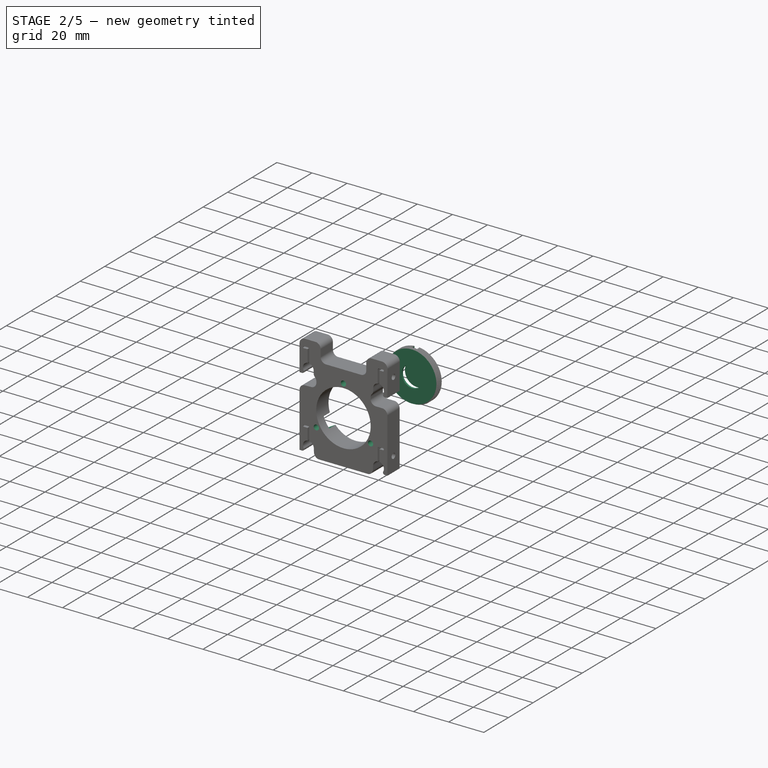
[diagram: stage 2 of 5 — iso view after this stage's code; geometry added in this stage tinted green]
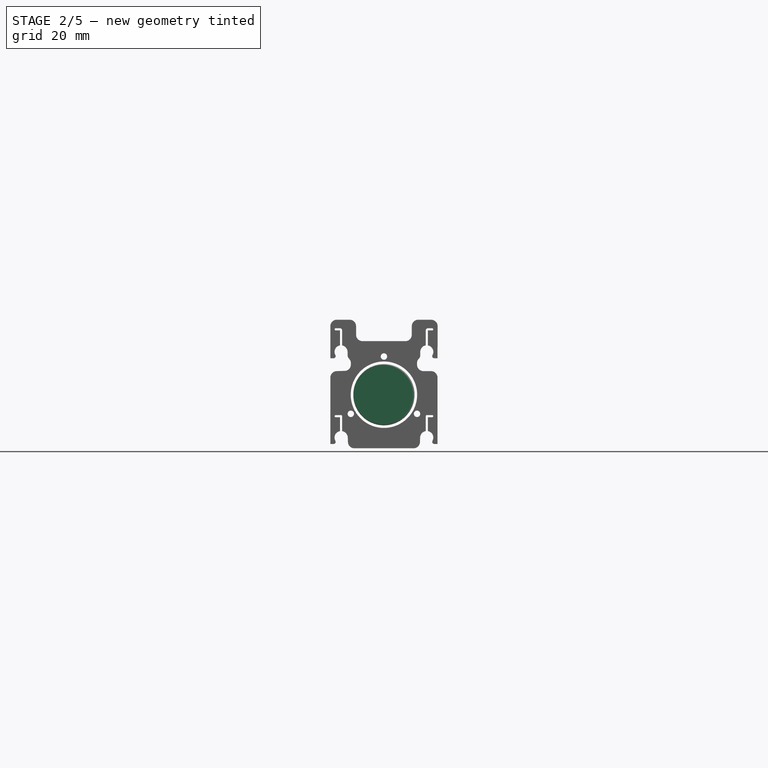
[diagram: stage 2 of 5 — front view after this stage's code; geometry added in this stage tinted green]
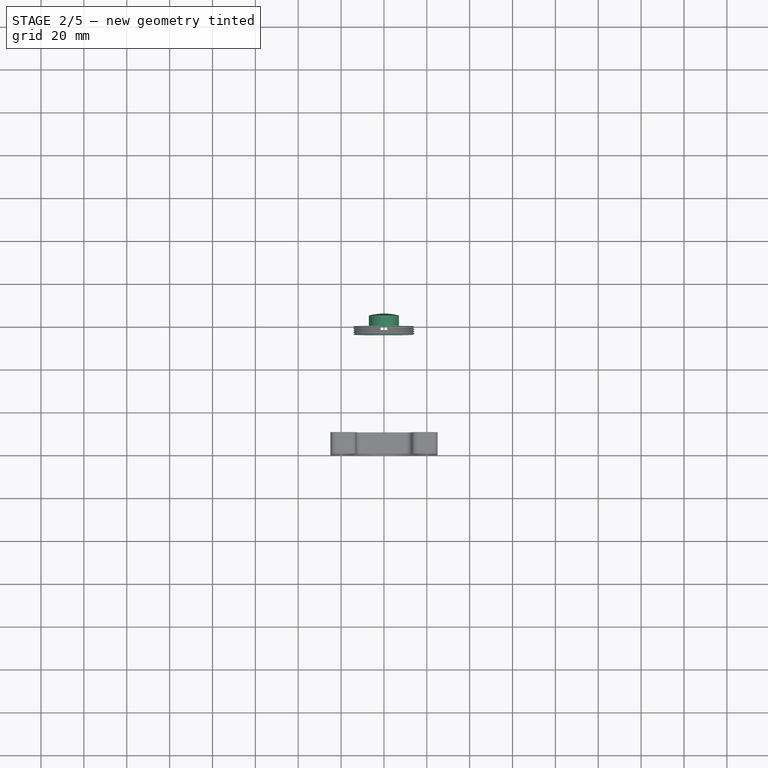
[diagram: stage 2 of 5 — top view after this stage's code; geometry added in this stage tinted green]
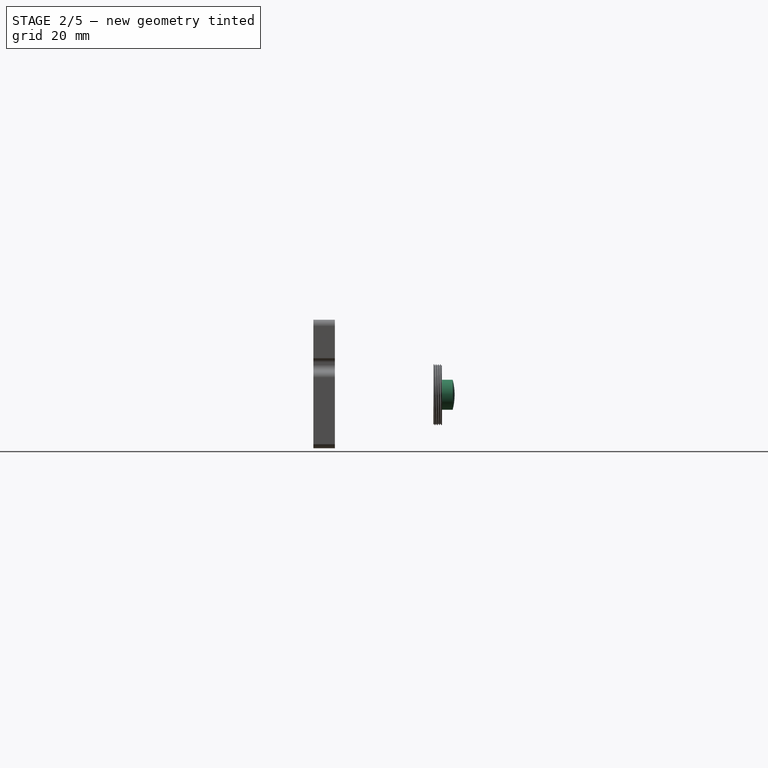
[diagram: stage 2 of 5 — right view after this stage's code; geometry added in this stage tinted green]
FEATURE [Sketcher::SketchObject] Sketch020  label="OpticInterfaceMasterSketch"
  ExternalGeometry = -> [Clone2D005]
  FullyConstrained = true
  Placement = pos=(0,-50,-1.1e-14) rot=(1,0,0;1.5708rad)
  expr: Constraints[41] = Spreadsheet.insertablemaxopticdiam - Spreadsheet.insertableifclearance / 2
  expr: Constraints[53] = Spreadsheet.insertableifclearance / 2
  expr: Constraints[54] = Spreadsheet.insertableifclearance / 2
  sketch-geometry (34):
    g0: LineSegment StartX=-3.173 StartY=14.6606 StartZ=0 EndX=3.173 EndY=14.6606 EndZ=0
    g1: LineSegment StartX=3.173 StartY=14.6606 StartZ=0 EndX=3.173 EndY=20.6606 EndZ=0
    g2: LineSegment StartX=3.173 StartY=20.6606 StartZ=0 EndX=-3.173 EndY=20.6606 EndZ=0
    g3: LineSegment StartX=-3.173 StartY=20.6606 StartZ=0 EndX=-3.173 EndY=14.6606 EndZ=0
    g4: LineSegment StartX=14.2829 StartY=-4.58238 StartZ=0 EndX=11.1099 EndY=-10.0782 EndZ=0
    g5: LineSegment StartX=11.1099 StartY=-10.0782 StartZ=0 EndX=16.3061 EndY=-13.0782 EndZ=0
    g6: LineSegment StartX=16.3061 StartY=-13.0782 StartZ=0 EndX=19.4791 EndY=-7.58238 EndZ=0
    g7: LineSegment StartX=19.4791 StartY=-7.58238 StartZ=0 EndX=14.2829 EndY=-4.58238 EndZ=0
    g8: LineSegment StartX=-14.2829 StartY=-4.58238 StartZ=0 EndX=-11.1099 EndY=-10.0782 EndZ=0
    g9: LineSegment StartX=-11.1099 StartY=-10.0782 StartZ=0 EndX=-16.3061 EndY=-13.0782 EndZ=0
    g10: LineSegment StartX=-16.3061 StartY=-13.0782 StartZ=0 EndX=-19.4791 EndY=-7.58238 EndZ=0
    g11: LineSegment StartX=-19.4791 StartY=-7.58238 StartZ=0 EndX=-14.2829 EndY=-4.58238 EndZ=0
    g12: Circle CenterX=0 CenterY=17.8303 CenterZ=0 NormalX=0 NormalY=0 NormalZ=1 AngleXU=0 Radius=1.5
    g13: GeomPoint X=0 Y=15 Z=0
    g14: GeomPoint X=0 Y=20.6606 Z=0
    g15: Circle CenterX=0 CenterY=17.8303 CenterZ=0 NormalX=0 NormalY=0 NormalZ=1 AngleXU=0 Radius=2.3
    g16: ArcOfCircle CenterX=0 CenterY=2.21e-14 CenterZ=0 NormalX=0 NormalY=0 NormalZ=1 AngleXU=0 Radius=14.925 StartAngle=1.77475 EndAngle=3.46123
    g17: LineSegment StartX=-3.023 StartY=14.6156 StartZ=0 EndX=-3.023 EndY=20.5106 EndZ=0
    g18: LineSegment StartX=-3.023 StartY=20.5106 StartZ=0 EndX=3.023 EndY=20.5106 EndZ=0
    g19: LineSegment StartX=3.023 StartY=20.5106 StartZ=0 EndX=3.023 EndY=14.6156 EndZ=0
    g20: LineSegment StartX=-11.146 StartY=-9.92582 StartZ=0 EndX=-16.2512 EndY=-12.8733 EndZ=0
    g21: LineSegment StartX=-16.2512 StartY=-12.8733 StartZ=0 EndX=-19.2742 EndY=-7.63729 EndZ=0
    g22: LineSegment StartX=-19.2742 StartY=-7.63729 StartZ=0 EndX=-14.169 EndY=-4.68983 EndZ=0
    g23: LineSegment StartX=14.169 StartY=-4.68983 StartZ=0 EndX=19.2742 EndY=-7.63729 EndZ=0
    g24: LineSegment StartX=19.2742 StartY=-7.63729 StartZ=0 EndX=16.2512 EndY=-12.8733 EndZ=0
    g25: LineSegment StartX=16.2512 StartY=-12.8733 StartZ=0 EndX=11.146 EndY=-9.92582 EndZ=0
    g26: ArcOfCircle CenterX=0 CenterY=2.21e-14 CenterZ=0 NormalX=0 NormalY=0 NormalZ=1 AngleXU=0 Radius=14.925 StartAngle=3.86915 EndAngle=5.55563
    g27: ArcOfCircle CenterX=0 CenterY=2.21e-14 CenterZ=0 NormalX=0 NormalY=0 NormalZ=1 AngleXU=0 Radius=14.925 StartAngle=5.96354 EndAngle=7.65002
    g28: Circle CenterX=15.4415 CenterY=-8.91514 CenterZ=0 NormalX=0 NormalY=0 NormalZ=1 AngleXU=0 Radius=2.3
    g29: Circle CenterX=-15.4415 CenterY=-8.91514 CenterZ=0 NormalX=0 NormalY=0 NormalZ=1 AngleXU=0 Radius=2.3
    g30: Circle CenterX=0 CenterY=2.21e-14 CenterZ=0 NormalX=0 NormalY=0 NormalZ=1 AngleXU=0 Radius=12.6
    g31: Circle CenterX=0 CenterY=2.21e-14 CenterZ=0 NormalX=0 NormalY=0 NormalZ=1 AngleXU=0 Radius=13.925
    g32: GeomPoint X=14.925 Y=0 Z=0
    g33: GeomPoint X=13.925 Y=0 Z=0
  constraints (87):
    c: PointOnObject(g0,g-6)
    c: Coincident(g0,g1)
    c: Coincident(g1,g2)
    c: Coincident(g2,g3)
    c: Coincident(g3,g0)
    c: PointOnObject(g4,g-6)
    c: Coincident(g4,g5)
    c: Coincident(g5,g6)
    c: Coincident(g6,g7)
    c: Coincident(g7,g4)
    c: PointOnObject(g8,g-6)
    c: Coincident(g8,g9)
    c: Coincident(g9,g10)
    c: Coincident(g10,g11)
    c: Coincident(g11,g8)
    c: Symmetric(g0,g0,g-3)
    c: Symmetric(g4,g4,g-4)
    c: Symmetric(g8,g8,g-5)
    c: Parallel(g3,g1)
    c: Parallel(g1,g-3)
    c: Parallel(g7,g5)
    c: Parallel(g5,g-4)
    c: Parallel(g11,g9)
    c: Parallel(g9,g-5)
    c: Parallel(g2,g0)
    c: Parallel(g4,g6)
    c: Parallel(g8,g10)
    c: Equal(g0,g4)
    c: Equal(g4,g8)
    c: Equal(g1,g5)
    c: Equal(g5,g11)
    c: PointOnObject(g12,g-3)
    c: Diameter(g12) = 3
    c: PointOnObject(g13,g-6)
    c: PointOnObject(g13,g-3)
    c: PointOnObject(g14,g2)
    c: Symmetric(g14,g13,g12)
    c: Distance(g2) = 6.346
    c: Coincident(g15,g12)
    c: Diameter(g15) = 4.6
    c: Coincident(g16,g-6)
    c: Diameter(g16) = 29.85
    c: Vertical(g17)
    c: Coincident(g17,g18)
    c: Coincident(g18,g19)
    c: Vertical(g19)
    c: PointOnObject(g20,g16)
    c: Coincident(g20,g21)
    c: Coincident(g21,g22)
    c: PointOnObject(g23,g16)
    c: Coincident(g23,g24)
    c: Coincident(g24,g25)
    c: PointOnObject(g25,g16)
    c: DistanceY(g18,g1) = 0.15
    c: DistanceX(g18,g1) = 0.15
    c: Symmetric(g18,g17,g-3)
    c: Symmetric(g23,g18,g-5)
    c: Symmetric(g23,g24,g-4)
    c: Equal(g19,g23)
    c: Equal(g23,g25)
    c: Symmetric(g21,g17,g-4)
    c: Equal(g17,g22)
    c: Equal(g20,g22)
    c: Symmetric(g21,g20,g-5)
    c: Coincident(g16,g17)
    c: Coincident(g27,g19)
    c: Equal(g16,g26)
    c: Coincident(g16,g22)
    c: Coincident(g16,g26)
    c: PointOnObject(g26,g20)
    c: Equal(g26,g27)
    c: PointOnObject(g26,g25)
    c: Coincident(g26,g27)
    c: PointOnObject(g27,g23)
    c: Distance(g1) = 6
    c: Equal(g15,g29)
    c: Equal(g29,g28)
    c: Coincident(g30,g16)
    c: Diameter(g30) = 25.2
    c: Symmetric(g12,g28,g-5)
    c: Symmetric(g12,g29,g-4)
    c: Coincident(g31,g16)
    c: PointOnObject(g32,g27)
    c: PointOnObject(g32,g-1)
    c: PointOnObject(g33,g31)
    c: PointOnObject(g33,g-1)
    c: DistanceX(g33,g32) = 1
FEATURE [Part::Part2DObjectPython] Clone2D006  label="OpticInterfaceMasterSketch (2D)"  # Draft 2D object (typed FeaturePython)
  Fuse = false
  Objects = -> [Sketch020]
  Placement = pos=(0,-50,-1.1e-14) rot=(1,0,0;1.5708rad)
  Scale = (1,1,1)
FEATURE [Sketcher::SketchObject] Sketch021
  ExternalGeometry = -> [Clone2D006]
  FullyConstrained = true
  MapMode = 5
  Placement = pos=(0,-50,-1.11e-14) rot=(1,0,0;1.5708rad)
  Support = -> [DatumPlane008]
  sketch-geometry (12):
    g0: LineSegment StartX=-3.173 StartY=14.6606 StartZ=0 EndX=-3.173 EndY=20.6606 EndZ=0
    g1: LineSegment StartX=-3.173 StartY=20.6606 StartZ=0 EndX=3.173 EndY=20.6606 EndZ=0
    g2: LineSegment StartX=3.173 StartY=20.6606 StartZ=0 EndX=3.173 EndY=14.6606 EndZ=0
    g3: LineSegment StartX=3.173 StartY=14.6606 StartZ=0 EndX=-3.173 EndY=14.6606 EndZ=0
    g4: LineSegment StartX=11.1099 StartY=-10.0782 StartZ=0 EndX=14.2829 EndY=-4.58238 EndZ=0
    g5: LineSegment StartX=14.2829 StartY=-4.58238 StartZ=0 EndX=19.4791 EndY=-7.58238 EndZ=0
    g6: LineSegment StartX=19.4791 StartY=-7.58238 StartZ=0 EndX=16.3061 EndY=-13.0782 EndZ=0
    g7: LineSegment StartX=16.3061 StartY=-13.0782 StartZ=0 EndX=11.1099 EndY=-10.0782 EndZ=0
    g8: LineSegment StartX=-14.2829 StartY=-4.58238 StartZ=0 EndX=-11.1099 EndY=-10.0782 EndZ=0
    g9: LineSegment StartX=-11.1099 StartY=-10.0782 StartZ=0 EndX=-16.3061 EndY=-13.0782 EndZ=0
    g10: LineSegment StartX=-16.3061 StartY=-13.0782 StartZ=0 EndX=-19.4791 EndY=-7.58238 EndZ=0
    g11: LineSegment StartX=-19.4791 StartY=-7.58238 StartZ=0 EndX=-14.2829 EndY=-4.58238 EndZ=0
  constraints (24):
    c: Coincident(g-3,g0)
    c: Coincident(g0,g-4)
    c: Coincident(g0,g1)
    c: Coincident(g1,g-5)
    c: Coincident(g1,g2)
    c: Coincident(g2,g-5)
    c: Coincident(g2,g3)
    c: Coincident(g3,g0)
    c: Coincident(g-8,g4)
    c: Coincident(g4,g-6)
    c: Coincident(g4,g5)
    c: Coincident(g5,g-7)
    c: Coincident(g5,g6)
    c: Coincident(g6,g-8)
    c: Coincident(g6,g7)
    c: Coincident(g7,g4)
    c: Coincident(g-11,g8)
    c: Coincident(g8,g-9)
    c: Coincident(g8,g9)
    c: Coincident(g9,g-10)
    c: Coincident(g9,g10)
    c: Coincident(g10,g-11)
    c: Coincident(g10,g11)
    c: Coincident(g11,g8)
FEATURE [PartDesign::Pocket] Pocket004
  BaseFeature = -> Pocket003
  Direction = (0,1,2e-16)
  Length = 5
  Length2 = 5
  Placement = pos=(0,-50,-1.11e-14) rot=(1,0,0;1.5708rad)
  Profile = -> Sketch021
  ReferenceAxis = -> Sketch021 [N_Axis]
  Refine = true
  Reversed = true
  Type = 0
FEATURE [Part::Part2DObjectPython] Clone2D007  label="OpticInterfaceMasterSketch (2D)001"  # Draft 2D object (typed FeaturePython)
  Fuse = false
  Objects = -> [Sketch020]
  Placement = pos=(0,-50,-1.1e-14) rot=(1,0,0;1.5708rad)
  Scale = (1,1,1)
FEATURE [Sketcher::SketchObject] Sketch022  label="MountTabSketch"
  ExternalGeometry = -> [Clone2D007]
  FullyConstrained = true
  MapMode = 5
  Placement = pos=(0,0,0) rot=(1,0,0;1.5708rad)
  Support = -> [XZ_Plane011]
  sketch-geometry (15):
    g0: LineSegment StartX=-3.023 StartY=14.6156 StartZ=0 EndX=-3.023 EndY=20.5106 EndZ=0
    g1: LineSegment StartX=-3.023 StartY=20.5106 StartZ=0 EndX=3.023 EndY=20.5106 EndZ=0
    g2: LineSegment StartX=3.023 StartY=20.5106 StartZ=0 EndX=3.023 EndY=14.6156 EndZ=0
    g3: LineSegment StartX=14.169 StartY=-4.68983 StartZ=0 EndX=19.2742 EndY=-7.63729 EndZ=0
    g4: LineSegment StartX=19.2742 StartY=-7.63729 StartZ=0 EndX=16.2512 EndY=-12.8733 EndZ=0
    g5: LineSegment StartX=16.2512 StartY=-12.8733 StartZ=0 EndX=11.146 EndY=-9.92582 EndZ=0
    g6: LineSegment StartX=-11.146 StartY=-9.92582 StartZ=0 EndX=-16.2512 EndY=-12.8733 EndZ=0
    g7: LineSegment StartX=-16.2512 StartY=-12.8733 StartZ=0 EndX=-19.2742 EndY=-7.63729 EndZ=0
    g8: LineSegment StartX=-19.2742 StartY=-7.63729 StartZ=0 EndX=-14.169 EndY=-4.68983 EndZ=0
    g9: Circle CenterX=0 CenterY=17.8303 CenterZ=0 NormalX=0 NormalY=0 NormalZ=1 AngleXU=0 Radius=1.5
    g10: Circle CenterX=15.4415 CenterY=-8.91514 CenterZ=0 NormalX=0 NormalY=0 NormalZ=1 AngleXU=0 Radius=1.5
    g11: Circle CenterX=-15.4415 CenterY=-8.91514 CenterZ=0 NormalX=0 NormalY=0 NormalZ=1 AngleXU=0 Radius=1.5
    g12: LineSegment StartX=-14.169 StartY=-4.68983 StartZ=0 EndX=-11.146 EndY=-9.92582 EndZ=0
    g13: LineSegment StartX=-3.023 StartY=14.6156 StartZ=0 EndX=3.023 EndY=14.6156 EndZ=0
    g14: LineSegment StartX=14.169 StartY=-4.68983 StartZ=0 EndX=11.146 EndY=-9.92582 EndZ=0
  constraints (30):
    c: Coincident(g-5,g0)
    c: Coincident(g0,g-6)
    c: Coincident(g0,g1)
    c: Coincident(g1,g-6)
    c: Coincident(g1,g2)
    c: Coincident(g2,g-3)
    c: Coincident(g3,g-7)
    c: Coincident(g3,g4)
    c: Coincident(g4,g-7)
    c: Coincident(g4,g5)
    c: Coincident(g5,g-4)
    c: Coincident(g6,g-8)
    c: Coincident(g6,g7)
    c: Coincident(g7,g-8)
    c: Coincident(g7,g8)
    c: Coincident(g8,g-5)
    c: Coincident(g9,g-9)
    c: Coincident(g10,g-10)
    c: Coincident(g11,g-11)
    c: Equal(g9,g10)
    c: Equal(g10,g11)
    c: Diameter(g9) = 3
    c: Coincident(g12,g8)
    c: Coincident(g13,g0)
    c: Coincident(g13,g2)
    c: Coincident(g14,g5)
    c: Coincident(g14,g3)
    c: Coincident(g3,g-3)
    c: Coincident(g12,g6)
    c: Coincident(g-4,g6)
FEATURE [PartDesign::Plane] DatumPlane011
  AttachmentOffset = pos=(0,0,10) rot=(0,0,1;0rad)
  Length = 60
  MapMode = 5
  Placement = pos=(0,-10,-2.2e-15) rot=(1,0,0;1.5708rad)
  ResizeMode = 0
  Support = -> [XZ_Plane011]
  Width = 60
  expr: .AttachmentOffset.Base.z = Spreadsheet.insertablemountdepth
FEATURE [Sketcher::SketchObject] Sketch026
  FullyConstrained = false
  MapMode = 5
  Placement = pos=(0,0,0) rot=(0.57735,0.57735,0.57735;2.0944rad)
  Support = -> [YZ_Plane012]
  expr: Constraints[10] = Spreadsheet.lensedgethickness
  expr: Constraints[9] = Spreadsheet.lensdiameter / 2
  sketch-geometry (4):
    g0: LineSegment StartX=0 StartY=0 StartZ=0 EndX=0 EndY=7 EndZ=0
    g1: LineSegment StartX=0 StartY=7 StartZ=0 EndX=5 EndY=7 EndZ=0
    g2: LineSegment StartX=0 StartY=0 StartZ=0 EndX=5.89267 EndY=0 EndZ=0
    g3: ArcOfCircle CenterX=-21.9994 CenterY=0 CenterZ=0 NormalX=0 NormalY=0 NormalZ=1 AngleXU=0 Radius=27.892 StartAngle=0 EndAngle=0.25368
  constraints (11):
    c: Coincident(g-1,g0)
    c: PointOnObject(g0,g-2)
    c: Coincident(g0,g1)
    c: Horizontal(g1)
    c: Coincident(g2,g0)
    c: PointOnObject(g2,g-1)
    c: PointOnObject(g3,g-1)
    c: Coincident(g3,g1)
    c: Coincident(g2,g3)
    c: DistanceY(g0,g0) = 7
    c: DistanceX(g1,g1) = 5
FEATURE [PartDesign::Revolution] Revolution
  Angle = 360
  Axis = (3e-16,1,-2e-16)
  Base = (0,0,0)
  Placement = pos=(0,0,0) rot=(0.57735,0.57735,0.57735;2.0944rad)
  Profile = -> Sketch026
  ReferenceAxis = -> Sketch026 [H_Axis]
  Refine = true
FEATURE [PartDesign::Body] Body012  label="LensBody"
  Group = -> [Sketch026,Revolution]
  Origin = -> Origin012
  Placement = pos=(7e-15,49.9,0) rot=(0,0,1;3.14159rad)
  Tip = -> Revolution
FEATURE [Part::Part2DObjectPython] Clone2D008  label="OpticInterfaceMasterSketch (2D)002"  # Draft 2D object (typed FeaturePython)
  Fuse = false
  Objects = -> [Sketch020]
  Placement = pos=(0,-50,-1.1e-14) rot=(1,0,0;1.5708rad)
  Scale = (1,1,1)
FEATURE [Sketcher::SketchObject] Sketch027
  ExternalGeometry = -> [Clone2D008]
  FullyConstrained = true
  MapMode = 5
  Placement = pos=(0,0,0) rot=(1,0,0;1.5708rad)
  Support = -> [XZ_Plane013]
  expr: Constraints[6] = Spreadsheet.insertablemaxopticdiam - 5mm
  expr: Constraints[7] = Spreadsheet.insertablemaxopticdiam
  sketch-geometry (4):
    g0: Circle CenterX=0 CenterY=0 CenterZ=0 NormalX=0 NormalY=0 NormalZ=1 AngleXU=0 Radius=12.5
    g1: Circle CenterX=0 CenterY=0 CenterZ=0 NormalX=0 NormalY=0 NormalZ=1 AngleXU=0 Radius=15
    g2: GeomPoint X=15 Y=0 Z=0
    g3: GeomPoint X=12.5 Y=0 Z=0
  constraints (8):
    c: Coincident(g0,g-1)
    c: Coincident(g1,g0)
    c: PointOnObject(g2,g1)
    c: PointOnObject(g3,g0)
    c: PointOnObject(g2,g-1)
    c: PointOnObject(g3,g-1)
    c: Diameter(g0) = 25
    c: Diameter(g1) = 30
FEATURE [PartDesign::Pad] Pad008
  Direction = (0,-1,-2e-16)
  Length = 4
  Length2 = 10
  Placement = pos=(0,0,0) rot=(1,0,0;1.5708rad)
  Profile = -> Sketch027
  ReferenceAxis = -> Sketch027 [N_Axis]
  Refine = true
  Type = 0
FEATURE [Sketcher::SketchObject] Sketch028
  FullyConstrained = false
  MapMode = 5
  Placement = pos=(0,0,0) rot=(1,0,0;1.5708rad)
  Support = -> [XZ_Plane013]
  sketch-geometry (4):
    g0: LineSegment StartX=-1.55 StartY=16.0648 StartZ=0 EndX=1.55 EndY=16.0648 EndZ=0
    g1: LineSegment StartX=1.55 StartY=16.0648 StartZ=0 EndX=1.55 EndY=-16.0648 EndZ=0
    g2: LineSegment StartX=1.55 StartY=-16.0648 StartZ=0 EndX=-1.55 EndY=-16.0648 EndZ=0
    g3: LineSegment StartX=-1.55 StartY=-16.0648 StartZ=0 EndX=-1.55 EndY=16.0648 EndZ=0
  constraints (9):
    c: Coincident(g0,g1)
    c: Coincident(g1,g2)
    c: Coincident(g2,g3)
    c: Coincident(g3,g0)
    c: Horizontal(g2)
    c: Vertical(g3)
    c: Symmetric(g0,g0,g-2)
    c: Symmetric(g0,g1,g-1)
    c: DistanceX(g0,g0) = 3.1
FEATURE [PartDesign::Pocket] Pocket006
  BaseFeature = -> Pad008
  Direction = (0,1,2e-16)
  Length = 2
  Length2 = 5
  Placement = pos=(0,0,0) rot=(1,0,0;1.5708rad)
  Profile = -> Sketch028
  ReferenceAxis = -> Sketch028 [N_Axis]
  Refine = true
  Reversed = true
  Type = 0
FEATURE [Part::FeaturePython] ScrewDie  label="28.5x20-ScrewDie"  # Fasteners workbench fastener (typed FeaturePython)
  Placement = pos=(0,0,0) rot=(1,0,0;4.71239rad)
  diameter = 29
  diameterCustom = 28.5
  invert = false
  leftHanded = false
  length = 20
  matchOuter = false
  offset = 0
  pitchCustom = 1
  thread = true
  type = 0
FEATURE [PartDesign::Boolean] Boolean002
  BaseFeature = -> Pocket006
  Group = -> [ScrewDie]
  Refine = true
  Type = 1
FEATURE [PartDesign::Body] Body011  label="OpticInterfaceBody"
  Group = -> [Sketch022,Clone2D007,DatumPlane011,Sketch030,Revolution001,Pad009,Boolean]
  Origin = -> Origin011
  Placement = pos=(7.7e-15,63.2,0) rot=(0,0,1;3.14159rad)
  Tip = -> Boolean
FEATURE [Sketcher::SketchObject] Sketch031
  AttachmentOffset = pos=(0,0,3) rot=(0,0,1;0rad)
  FullyConstrained = true
  MapMode = 5
  Placement = pos=(0,-3,-7e-16) rot=(1,0,0;1.5708rad)
  Support = -> [XZ_Plane013]
  expr: Constraints[2] = Spreadsheet.insertablemaxopticdiam - 3mm
  expr: Constraints[3] = Spreadsheet.lensdiameter - 2mm
  sketch-geometry (2):
    g0: Circle CenterX=0 CenterY=0 CenterZ=0 NormalX=0 NormalY=0 NormalZ=1 AngleXU=0 Radius=13.5
    g1: Circle CenterX=0 CenterY=0 CenterZ=0 NormalX=0 NormalY=0 NormalZ=1 AngleXU=0 Radius=6
  constraints (4):
    c: Coincident(g0,g-1)
    c: Coincident(g1,g0)
    c: Diameter(g0) = 27
    c: Diameter(g1) = 12
FEATURE [PartDesign::Pad] Pad010
  BaseFeature = -> Boolean002
  Direction = (0,-1,-2e-16)
  Length = 1
  Length2 = 10
  Profile = -> Sketch031
  ReferenceAxis = -> Sketch031 [N_Axis]
  Refine = true
  Type = 0
FEATURE [PartDesign::Body] Body013  label="OpticRetainerBody"
  Group = -> [Sketch027,Clone2D008,Pad008,Sketch028,Pocket006,Boolean002,Sketch031,Pad010]
  Origin = -> Origin013
  Placement = pos=(3e-15,24.9,0) rot=(0,0,1;3.14159rad)
  Tip = -> Pad010
FEATURE [PartDesign::ShapeBinder] ShapeBinder
  Support = -> [Boolean]
  TraceSupport = false
FEATURE [Sketcher::SketchObject] Sketch032
  ExternalGeometry = -> [ShapeBinder]
  FullyConstrained = true
  MapMode = 5
  Placement = pos=(0,-50,-1.11e-14) rot=(1,0,0;1.5708rad)
  Support = -> [DatumPlane008]
  sketch-geometry (3):
    g0: Circle CenterX=-5.9e-15 CenterY=17.8303 CenterZ=0 NormalX=0 NormalY=0 NormalZ=1 AngleXU=0 Radius=1.5
    g1: Circle CenterX=15.4415 CenterY=-8.91514 CenterZ=0 NormalX=0 NormalY=0 NormalZ=1 AngleXU=0 Radius=1.5
    g2: Circle CenterX=-15.4415 CenterY=-8.91514 CenterZ=0 NormalX=0 NormalY=0 NormalZ=1 AngleXU=0 Radius=1.5
  constraints (6):
    c: Coincident(g-3,g0)
    c: Coincident(g2,g-4)
    c: Coincident(g1,g-5)
    c: Equal(g0,g1)
    c: Equal(g1,g2)
    c: Diameter(g0) = 3
FEATURE [PartDesign::Pocket] Pocket007
  BaseFeature = -> Pocket004
  Direction = (0,1,2e-16)
  Length = 10
  Length2 = 5
  Placement = pos=(0,-50,-1.11e-14) rot=(1,0,0;1.5708rad)
  Profile = -> Sketch032
  ReferenceAxis = -> Sketch032 [N_Axis]
  Refine = true
  Reversed = true
  Type = 0
FEATURE [PartDesign::Body] Body010  label="InsertableLenseMountBody"
  Group = -> [DatumPlane008,Clone2D005,Sketch017,Pad004,DatumPlane009,DatumPlane010,Sketch018,Sketch019,Pocket002,Pocket003,Sketch021,Clone2D006,Pocket004,ShapeBinder,Sketch032,Pocket007]
  Origin = -> Origin010
  Placement = pos=(4.4e-15,35.9,0) rot=(0,0,1;3.14159rad)
  Tip = -> Pocket007
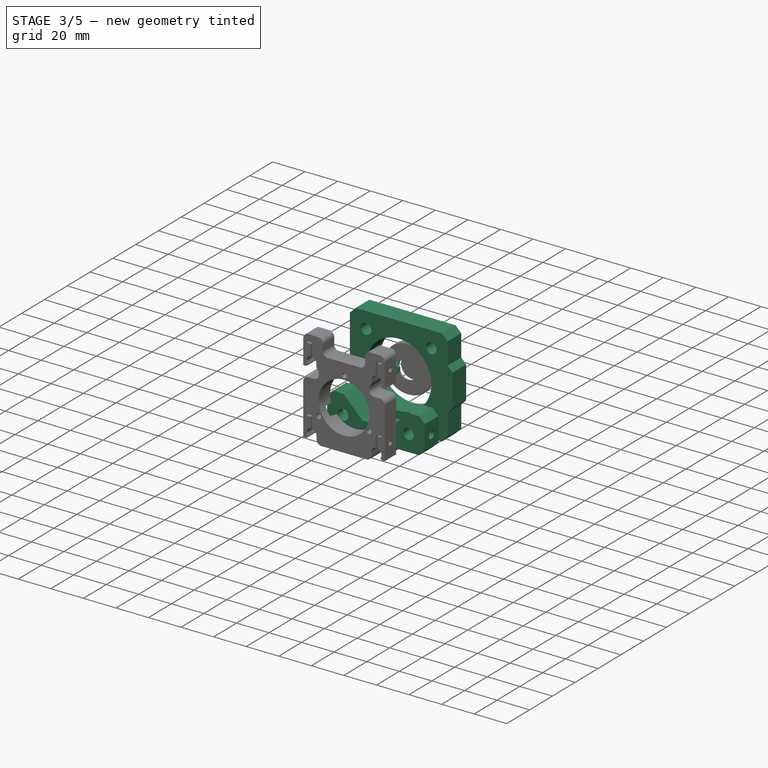
[diagram: stage 3 of 5 — iso view after this stage's code; geometry added in this stage tinted green]
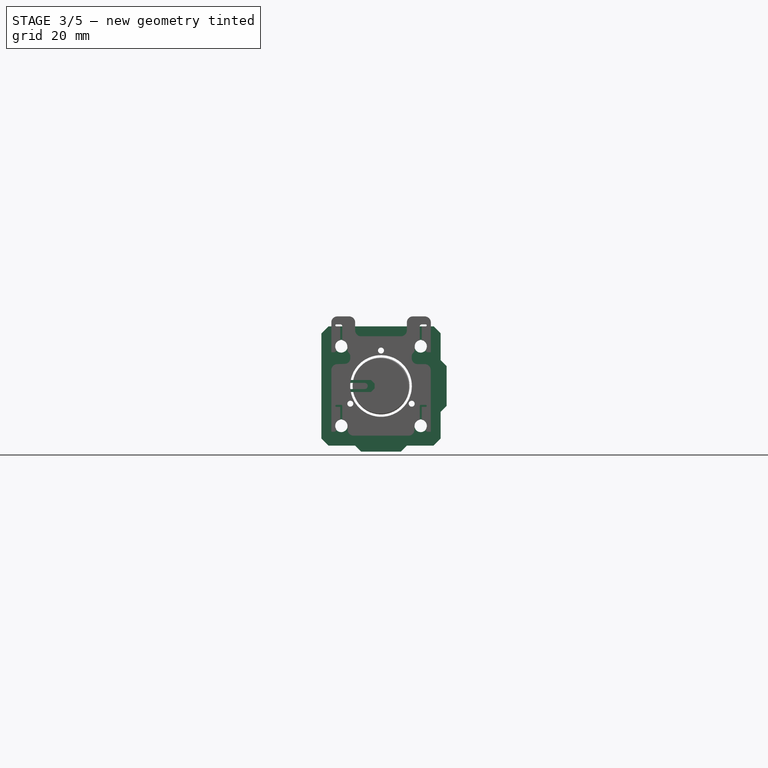
[diagram: stage 3 of 5 — front view after this stage's code; geometry added in this stage tinted green]
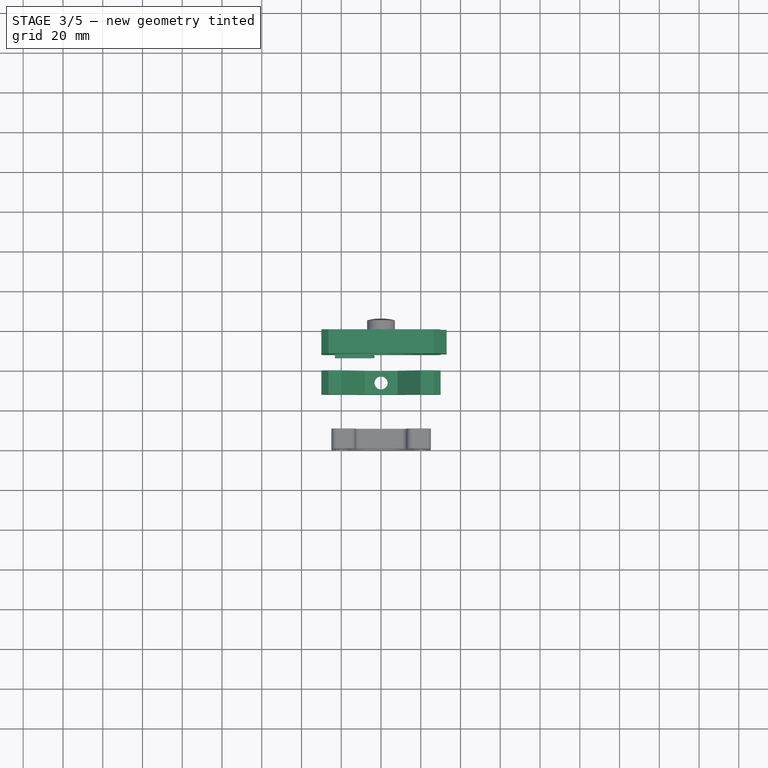
[diagram: stage 3 of 5 — top view after this stage's code; geometry added in this stage tinted green]
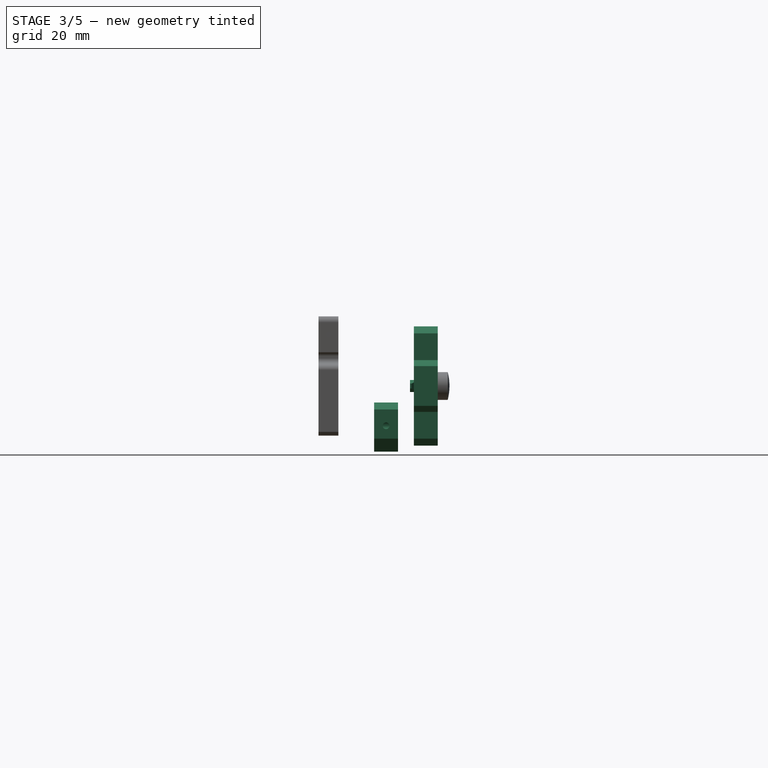
[diagram: stage 3 of 5 — right view after this stage's code; geometry added in this stage tinted green]
FEATURE [Sketcher::SketchObject] Sketch  label="MasterSketch"
  FullyConstrained = false
  Placement = pos=(0,0,0) rot=(1,0,0;1.5708rad)
  expr: Constraints[14] = Spreadsheet.baseouterdim
  expr: Constraints[1] = <<Spreadsheet>>.maxopticdiameter
  expr: Constraints[23] = Spreadsheet.roddiameter + Spreadsheet.rodclearance
  expr: Constraints[46] = Spreadsheet.cagedim
  expr: Constraints[61] = Spreadsheet.laserbeamheight
  sketch-geometry (24):
    g0: Circle CenterX=0 CenterY=0 CenterZ=0 NormalX=0 NormalY=0 NormalZ=1 AngleXU=0 Radius=20
    g1: GeomPoint X=0 Y=0 Z=0
    g2: LineSegment StartX=-30 StartY=30 StartZ=0 EndX=-30 EndY=-30 EndZ=0
    g3: LineSegment StartX=-30 StartY=-30 StartZ=0 EndX=30 EndY=-30 EndZ=0
    g4: LineSegment StartX=30 StartY=-30 StartZ=0 EndX=30 EndY=30 EndZ=0
    g5: LineSegment StartX=30 StartY=30 StartZ=0 EndX=-30 EndY=30 EndZ=0
    g6: GeomPoint X=0 Y=0 Z=0
    g7: LineSegment StartX=14.1421 StartY=14.1421 StartZ=0 EndX=20 EndY=20 EndZ=0
    g8: Circle CenterX=20 CenterY=20 CenterZ=0 NormalX=0 NormalY=0 NormalZ=1 AngleXU=0 Radius=3.2
    g9: Circle CenterX=20 CenterY=-20 CenterZ=0 NormalX=0 NormalY=0 NormalZ=1 AngleXU=0 Radius=3.2
    g10: Circle CenterX=-20 CenterY=-20 CenterZ=0 NormalX=0 NormalY=0 NormalZ=1 AngleXU=0 Radius=3.2
    g11: Circle CenterX=-20 CenterY=20 CenterZ=0 NormalX=0 NormalY=0 NormalZ=1 AngleXU=0 Radius=3.2
    g12: LineSegment StartX=26.4645 StartY=30 StartZ=0 EndX=30 EndY=26.4645 EndZ=0
    g13: LineSegment StartX=30 StartY=-26.4645 StartZ=0 EndX=26.4645 EndY=-30 EndZ=0
    g14: LineSegment StartX=-30 StartY=-26.4645 StartZ=0 EndX=-26.4645 EndY=-30 EndZ=0
    g15: LineSegment StartX=-26.4645 StartY=30 StartZ=0 EndX=-30 EndY=26.4645 EndZ=0
    g16: LineSegment StartX=-38.0085 StartY=38.0085 StartZ=0 EndX=41.6559 EndY=-41.6559 EndZ=0
    g17: LineSegment StartX=20 StartY=20 StartZ=0 EndX=28.2322 EndY=28.2322 EndZ=0
    g18: LineSegment StartX=0 StartY=0 StartZ=0 EndX=-50 EndY=0 EndZ=0
    g19: LineSegment StartX=0 StartY=0 StartZ=0 EndX=25 EndY=43.3013 EndZ=0
    g20: LineSegment StartX=0 StartY=0 StartZ=0 EndX=25 EndY=-43.3013 EndZ=0
    g21: Circle CenterX=0 CenterY=0 CenterZ=0 NormalX=0 NormalY=0 NormalZ=1 AngleXU=0 Radius=50
    g22: LineSegment StartX=0 StartY=0 StartZ=0 EndX=0 EndY=-45 EndZ=0
    g23: GeomPoint X=22.3291 Y=22.1943 Z=0
  constraints (63):
    c: Coincident(g0,g-1)
    c: Diameter(g0) = 40
    c: Coincident(g1,g0)
    c: Coincident(g2,g3)
    c: Coincident(g3,g4)
    c: Coincident(g4,g5)
    c: Coincident(g5,g2)
    c: Horizontal(g3)
    c: Horizontal(g5)
    c: Vertical(g2)
    c: Vertical(g4)
    c: Symmetric(g3,g2,g6)
    c: Coincident(g6,g0)
    c: Equal(g4,g3)
    c: Distance(g4) = 60
    c: PointOnObject(g7,g0)
    c: Coincident(g8,g7)
    c: Equal(g8,g9)
    c: Equal(g9,g10)
    c: Equal(g10,g11)
    c: Symmetric(g7,g9,g-1)
    c: Symmetric(g11,g10,g-1)
    c: Symmetric(g7,g11,g-2)
    c: Diameter(g8) = 6.4
    c: PointOnObject(g12,g5)
    c: PointOnObject(g12,g4)
    c: PointOnObject(g13,g4)
    c: PointOnObject(g13,g3)
    c: PointOnObject(g14,g2)
    c: PointOnObject(g14,g3)
    c: PointOnObject(g15,g5)
    c: PointOnObject(g15,g2)
    c: Parallel(g12,g14)
    c: Parallel(g15,g13)
    c: Perpendicular(g13,g14)
    c: Equal(g15,g12)
    c: Equal(g12,g13)
    c: Equal(g13,g14)
    c: Distance(g12) = 5
    c: Angle(g-2,g16) = 0.785398
    c: PointOnObject(g0,g16)
    c: Parallel(g12,g16)
    c: Coincident(g17,g7)
    c: Parallel(g7,g17)
    c: Perpendicular(g16,g7)
    c: Symmetric(g12,g12,g17)
    c: DistanceY(g9,g7) = 40
    c: Coincident(g18,g0)
    c: Coincident(g19,g0)
    c: Coincident(g20,g0)
    c: Coincident(g21,g0)
    c: PointOnObject(g18,g21)
    c: PointOnObject(g19,g21)
    c: PointOnObject(g20,g21)
    c: Angle(g19,g18) = 2.0944
    c: Angle(g20,g19) = 2.0944
    c: PointOnObject(g18,g-1)
    c: Coincident(g22,g0)
    c: PointOnObject(g22,g-2)
    c: Radius(g21) = 50
    c: Block(g16)
    c: DistanceY(g22,g22) = 45
    c: PointOnObject(g23,g8)
FEATURE [Spreadsheet::Sheet] Spreadsheet
  cells = A1=baseouterdim; B1(baseouterdim)==60mm; A2=roddiameter; B2(roddiameter)==6mm; A3=maxopticdiameter; B3(maxopticdiameter)==40mm; A4=laserbeamheight; B4(laserbeamheight)==45mm; A5=endplateminthickness; B5(endplateminthickness)==10mm; A6=endplatedepth; B6(endplatedepth)==12mm; A7=cagedim; B7(cagedim)==40mm; C7=rod distance, center to center; A8=fingerclampwidth; B8(fingerclampwidth)==6mm; A9=fingerclamplength; B9(fingerclamplength)==20mm; C9=long=30mm, short=20mm; A10=fingerclampheight; B10(fingerclampheight)==8mm; A11=rodclearance; B11(rodclearance)==0.4mm; A12=footheight; B12(footheight)==3mm; A13=footlength; B13(footlength)==20mm; A14=cagebasezoffset; B14(cagebasezoffset)==20mm; A15=rodpocketdepth; B15(rodpocketdepth)==1.5mm; A16=rodpocketoverhang; B16(rodpocketoverhang)==3mm; A17=insertablebasedim; B17(insertablebasedim)==50mm; A18=insertablemaxopticdiam; B18(insertablemaxopticdiam)==30mm; A19=insertablemountdepth; B19(insertablemountdepth)==10mm; A20=filletsmall; B20(filletsmall)==1mm; A21=filletlarge; B21(filletlarge)==3mm; A22=flexgapwidth; B22(flexgapwidth)==1mm; A23=flexgaplength; B23(flexgaplength)==10mm; A24=flextabheight; B24(flextabheight)==10mm; A25=flextabwidth; B25(flextabwidth)==12mm; A26=ilensmountpartoffset; B26(ilensmountpartoffset)==50mm; A27=ilensmountdepth; B27(ilensmountdepth)==10mm; A28=clampscrewholediameter; B28(clampscrewholediameter)==3mm; A29=insertableifclearance; B29(insertableifclearance)==0.3mm; C29=TODO: tune this, it's set large to make design easier; A30=lensdiameter; B30(lensdiameter)==14mm; A31=lensedgethickness; B31(lensedgethickness)==5mm; A32=lenscenterthickness; B32(lenscenterthickness)==6mm; A33=insertablelenslip; B33(insertablelenslip)==1mm; A34=lensclearance; B34(lensclearance)==0.2mm; A35=insertablerodclearance; B35(insertablerodclearance)==0.1mm
FEATURE [Part::Part2DObjectPython] Clone2D  label="MasterSketch (2D)"  # Draft 2D object (typed FeaturePython)
  Fuse = false
  Objects = -> [Sketch]
  Placement = pos=(0,0,0) rot=(1,0,0;1.5708rad)
  Scale = (1,1,1)
FEATURE [Sketcher::SketchObject] Sketch001
  ExternalGeometry = -> [Clone2D]
  FullyConstrained = false
  MapMode = 5
  Placement = pos=(0,0,0) rot=(1,0,0;1.5708rad)
  Support = -> [XZ_Plane]
  sketch-geometry (18):
    g0: GeomPoint X=0 Y=0 Z=0
    g1: LineSegment StartX=30 StartY=-26.4645 StartZ=0 EndX=26.4645 EndY=-30 EndZ=0
    g2: LineSegment StartX=-26.4645 StartY=-30 StartZ=0 EndX=-30 EndY=-26.4645 EndZ=0
    g3: LineSegment StartX=-30 StartY=-26.4645 StartZ=0 EndX=-30 EndY=26.4645 EndZ=0
    g4: LineSegment StartX=-30 StartY=26.4645 StartZ=0 EndX=-26.4645 EndY=30 EndZ=0
    g5: LineSegment StartX=-26.4645 StartY=30 StartZ=0 EndX=26.4645 EndY=30 EndZ=0
    g6: LineSegment StartX=26.4645 StartY=30 StartZ=0 EndX=30 EndY=26.4645 EndZ=0
    g7: Circle CenterX=0 CenterY=0 CenterZ=0 NormalX=0 NormalY=0 NormalZ=1 AngleXU=0 Radius=20
    g8: Circle CenterX=-20 CenterY=20 CenterZ=0 NormalX=0 NormalY=0 NormalZ=1 AngleXU=0 Radius=3.2
    g9: Circle CenterX=20 CenterY=20 CenterZ=0 NormalX=0 NormalY=0 NormalZ=1 AngleXU=0 Radius=3.2
    g10: Circle CenterX=20 CenterY=-20 CenterZ=0 NormalX=0 NormalY=0 NormalZ=1 AngleXU=0 Radius=3.2
    g11: Circle CenterX=-20 CenterY=-20 CenterZ=0 NormalX=0 NormalY=0 NormalZ=1 AngleXU=0 Radius=3.2
    g12: LineSegment StartX=-26.4645 StartY=-30 StartZ=0 EndX=26.4645 EndY=-30 EndZ=0
    g13: LineSegment StartX=30 StartY=26.4645 StartZ=0 EndX=30 EndY=13 EndZ=0
    g14: LineSegment StartX=30 StartY=13 StartZ=0 EndX=33 EndY=10 EndZ=0
    g15: LineSegment StartX=33 StartY=10 StartZ=0 EndX=33 EndY=-10 EndZ=0
    g16: LineSegment StartX=33 StartY=-10 StartZ=0 EndX=30 EndY=-13 EndZ=0
    g17: LineSegment StartX=30 StartY=-13 StartZ=0 EndX=30 EndY=-26.4645 EndZ=0
  constraints (36):
    c: Coincident(g0,g-1)
    c: Coincident(g2,g3)
    c: Coincident(g3,g4)
    c: Coincident(g4,g5)
    c: Coincident(g5,g6)
    c: Coincident(g7,g0)
    c: Equal(g8,g9)
    c: Equal(g9,g10)
    c: Equal(g10,g11)
    c: Coincident(g9,g-8)
    c: Coincident(g8,g-11)
    c: Coincident(g11,g-10)
    c: Coincident(g-9,g10)
    c: Equal(g-8,g9)
    c: Coincident(g5,g-3)
    c: Coincident(g-4,g1)
    c: Coincident(g2,g-5)
    c: Coincident(g-6,g3)
    c: Coincident(g4,g-6)
    c: Coincident(g12,g1)
    c: Coincident(g2,g-5)
    c: Coincident(g12,g2)
    c: Coincident(g6,g13)
    c: Vertical(g13)
    c: Coincident(g13,g14)
    c: Coincident(g14,g15)
    c: Coincident(g15,g16)
    c: Coincident(g16,g17)
    c: Coincident(g17,g1)
    c: Coincident(g1,g-4)
    c: Coincident(g6,g-3)
    c: Symmetric(g14,g15,g-1)
    c: Symmetric(g13,g16,g-1)
    c: Angle(g14,g13) = 2.35619
    c: DistanceY(g15,g15) = 20
    c: DistanceX(g16,g15) = 3
FEATURE [PartDesign::Pad] Pad
  Direction = (0,-1,-2e-16)
  Length = 12
  Length2 = 10
  Placement = pos=(0,0,0) rot=(1,0,0;1.5708rad)
  Profile = -> Sketch001
  ReferenceAxis = -> Sketch001 [N_Axis]
  Refine = true
  Type = 0
  expr: Length = Spreadsheet.endplatedepth
FEATURE [PartDesign::Plane] DatumPlane004
  AttachmentOffset = pos=(0,0,30) rot=(0,0,1;0rad)
  Length = 60.9545
  MapMode = 5
  Placement = pos=(30,-6.7e-15,6.7e-15) rot=(0.57735,0.57735,0.57735;2.0944rad)
  ResizeMode = 0
  Support = -> [YZ_Plane]
  Width = 70.9545
  expr: .AttachmentOffset.Base.z = Spreadsheet.baseouterdim / 2
FEATURE [Sketcher::SketchObject] Sketch006
  FullyConstrained = false
  MapMode = 5
  Placement = pos=(30,-6.7e-15,6.7e-15) rot=(0.57735,0.57735,0.57735;2.0944rad)
  Support = -> [DatumPlane004]
  expr: Constraints[1] = Spreadsheet.endplatedepth / 2
  expr: Constraints[5] = Spreadsheet.cagedim / 2
  sketch-geometry (3):
    g0: LineSegment StartX=-6 StartY=33.2746 StartZ=0 EndX=-6 EndY=-32.8377 EndZ=0
    g1: Circle CenterX=-6 CenterY=20 CenterZ=0 NormalX=0 NormalY=0 NormalZ=1 AngleXU=0 Radius=1.5
    g2: Circle CenterX=-6 CenterY=-20 CenterZ=0 NormalX=0 NormalY=0 NormalZ=1 AngleXU=0 Radius=1.5
  constraints (7):
    c: Vertical(g0)
    c: DistanceX(g0,g-1) = 6
    c: PointOnObject(g1,g0)
    c: Equal(g1,g2)
    c: Diameter(g1) = 3
    c: DistanceY(g-1,g1) = 20
    c: Symmetric(g1,g2,g-1)
FEATURE [PartDesign::Pad] Pad002
  Direction = (0,-1,-2e-16)
  Length = 8
  Length2 = 10
  Placement = pos=(0,-6,-1.3e-15) rot=(1,0,0;1.5708rad)
  Profile = -> Sketch004
  ReferenceAxis = -> Sketch004 [N_Axis]
  Refine = true
  Type = 0
  expr: Length = Spreadsheet.fingerclampheight
FEATURE [PartDesign::Body] Body001  label="EndPlate2PlaceholderBody"
  BaseFeature = -> Body
  Group = -> [Clone]
  Origin = -> Origin001
  Placement = pos=(0,140,0) rot=(0,0,1;0rad)
  Tip = -> Clone
FEATURE [Sketcher::SketchObject] Sketch009
  FullyConstrained = false
  MapMode = 5
  Support = -> [XY_Plane006]
  expr: Constraints[1] = Spreadsheet.endplatedepth / 2 + Spreadsheet.fingerclampheight / 2
  sketch-geometry (4):
    g0: LineSegment StartX=-40.2914 StartY=-10 StartZ=0 EndX=19.6428 EndY=-10 EndZ=0
    g1: LineSegment StartX=0 StartY=0.082612 StartZ=0 EndX=-4.74036 EndY=-10 EndZ=0
    g2: LineSegment StartX=-4.74036 StartY=-10 StartZ=0 EndX=0 EndY=-20.0826 EndZ=0
    g3: LineSegment StartX=0 StartY=-20.0826 StartZ=0 EndX=0 EndY=0.082612 EndZ=0
  constraints (8):
    c: Horizontal(g0)
    c: DistanceY(g0,g-1) = 10
    c: PointOnObject(g1,g-2)
    c: PointOnObject(g1,g0)
    c: Coincident(g1,g2)
    c: Coincident(g2,g3)
    c: Coincident(g3,g1)
    c: Symmetric(g1,g2,g0)
FEATURE [PartDesign::Pocket] Pocket001
  BaseFeature = -> Pad002
  Direction = (0,0,-1)
  Length = 5
  Length2 = 5
  Midplane = true
  Placement = pos=(0,-6,-1.3e-15) rot=(1,0,0;1.5708rad)
  Profile = -> Sketch009
  ReferenceAxis = -> Sketch009 [N_Axis]
  Refine = true
  Type = 0
FEATURE [PartDesign::Body] Body008  label="FingerClampPlaceholderBody3"
  BaseFeature = -> Body006
  Group = -> [Clone005]
  Origin = -> Origin008
  Placement = pos=(0,0,0) rot=(0,1,0;4.18879rad)
  Tip = -> Clone005
FEATURE [PartDesign::Plane] DatumPlane007
  AttachmentOffset = pos=(0,0,20) rot=(0,0,1;0rad)
  Length = 71.7983
  MapMode = 5
  Placement = pos=(0,-20,-4.4e-15) rot=(1,0,0;1.5708rad)
  ResizeMode = 0
  Support = -> [XZ_Plane009]
  Width = 69.7983
  expr: .AttachmentOffset.Base.z = Spreadsheet.cagebasezoffset
FEATURE [Part::Part2DObjectPython] Clone2D003  label="MasterSketch (2D)003"  # Draft 2D object (typed FeaturePython)
  Fuse = false
  Objects = -> [Sketch]
  Placement = pos=(0,0,0) rot=(1,0,0;1.5708rad)
  Scale = (1,1,1)
FEATURE [Sketcher::SketchObject] Sketch010
  ExternalGeometry = -> [Clone2D003]
  FullyConstrained = true
  MapMode = 5
  Placement = pos=(0,-20,-4.4e-15) rot=(1,0,0;1.5708rad)
  Support = -> [DatumPlane007]
  expr: Constraints[39] = Spreadsheet.footlength
  expr: Constraints[40] = Spreadsheet.footheight
  expr: Constraints[45] = Spreadsheet.roddiameter + Spreadsheet.rodclearance
  sketch-geometry (19):
    g0: LineSegment StartX=30 StartY=-11.8198 StartZ=0 EndX=30 EndY=-26.4645 EndZ=0
    g1: LineSegment StartX=30 StartY=-26.4645 StartZ=0 EndX=26.4645 EndY=-30 EndZ=0
    g2: LineSegment StartX=26.4645 StartY=-30 StartZ=0 EndX=13 EndY=-30 EndZ=0
    g3: LineSegment StartX=13 StartY=-30 StartZ=0 EndX=10 EndY=-33 EndZ=0
    g4: LineSegment StartX=10 StartY=-33 StartZ=0 EndX=-10 EndY=-33 EndZ=0
    g5: LineSegment StartX=-10 StartY=-33 StartZ=0 EndX=-13 EndY=-30 EndZ=0
    g6: LineSegment StartX=-13 StartY=-30 StartZ=0 EndX=-26.4645 EndY=-30 EndZ=0
    g7: LineSegment StartX=-26.4645 StartY=-30 StartZ=0 EndX=-30 EndY=-26.4645 EndZ=0
    g8: LineSegment StartX=-30 StartY=-26.4645 StartZ=0 EndX=-30 EndY=-11.8198 EndZ=0
    g9: LineSegment StartX=-30 StartY=-11.8198 StartZ=0 EndX=-26.4645 EndY=-8.28427 EndZ=0
    g10: LineSegment StartX=-26.4645 StartY=-8.28427 StartZ=0 EndX=-20 EndY=-8.28427 EndZ=0
    g11: LineSegment StartX=-20 StartY=-8.28427 StartZ=0 EndX=-8.28427 EndY=-20 EndZ=0
    g12: LineSegment StartX=-8.28427 StartY=-20 StartZ=0 EndX=8.28427 EndY=-20 EndZ=0
    g13: LineSegment StartX=8.28427 StartY=-20 StartZ=0 EndX=20 EndY=-8.28427 EndZ=0
    g14: LineSegment StartX=20 StartY=-8.28427 StartZ=0 EndX=26.4645 EndY=-8.28427 EndZ=0
    g15: LineSegment StartX=26.4645 StartY=-8.28427 StartZ=0 EndX=30 EndY=-11.8198 EndZ=0
    g16: LineSegment StartX=0 StartY=0 StartZ=0 EndX=30 EndY=-30 EndZ=0
    g17: Circle CenterX=20 CenterY=-20 CenterZ=0 NormalX=0 NormalY=0 NormalZ=1 AngleXU=0 Radius=3.2
    g18: Circle CenterX=-20 CenterY=-20 CenterZ=0 NormalX=0 NormalY=0 NormalZ=1 AngleXU=0 Radius=3.2
  constraints (46):
    c: PointOnObject(g0,g-5)
    c: Coincident(g0,g-9)
    c: Coincident(g0,g1)
    c: Coincident(g1,g-9)
    c: Coincident(g1,g2)
    c: Horizontal(g2)
    c: Coincident(g2,g3)
    c: Coincident(g3,g4)
    c: Coincident(g4,g5)
    c: PointOnObject(g5,g-6)
    c: Coincident(g5,g6)
    c: Coincident(g6,g-10)
    c: Coincident(g6,g7)
    c: Coincident(g7,g-10)
    c: Coincident(g7,g8)
    c: PointOnObject(g8,g-7)
    c: Coincident(g8,g9)
    c: Coincident(g9,g10)
    c: Horizontal(g10)
    c: Coincident(g10,g11)
    c: Coincident(g11,g12)
    c: Coincident(g12,g13)
    c: Coincident(g13,g14)
    c: Horizontal(g14)
    c: Coincident(g14,g15)
    c: Coincident(g15,g0)
    c: Symmetric(g12,g11,g-2)
    c: Tangent(g12,g-8)
    c: Tangent(g11,g-8)
    c: Symmetric(g10,g13,g-2)
    c: Equal(g10,g14)
    c: Perpendicular(g9,g7)
    c: Coincident(g16,g-8)
    c: Coincident(g16,g-6)
    c: Equal(g15,g9)
    c: Equal(g1,g15)
    c: Symmetric(g3,g4,g-2)
    c: Parallel(g3,g1)
    c: Equal(g3,g5)
    c: DistanceX(g4,g4) = 20
    c: DistanceY(g4,g5) = 3
    c: Symmetric(g12,g13,g16)
    c: Coincident(g17,g-3)
    c: Coincident(g18,g-4)
    c: Equal(g18,g17)
    c: Diameter(g17) = 6.4
FEATURE [PartDesign::Pad] Pad003
  Direction = (0,-1,-2e-16)
  Length = 12
  Length2 = 10
  Placement = pos=(0,-20,-4.4e-15) rot=(1,0,0;1.5708rad)
  Profile = -> Sketch010
  ReferenceAxis = -> Sketch010 [N_Axis]
  Refine = true
  Type = 0
  expr: Length = Spreadsheet.endplatedepth
FEATURE [Sketcher::SketchObject] Sketch011
  AttachmentOffset = pos=(0,0,-20) rot=(0,0,1;0rad)
  FullyConstrained = false
  MapMode = 5
  Placement = pos=(0,0,-20) rot=(0,0,1;0rad)
  Support = -> [XY_Plane009]
  expr: .AttachmentOffset.Base.z = -Spreadsheet.maxopticdiameter / 2
  expr: Constraints[1] = Spreadsheet.cagebasezoffset + Spreadsheet.endplatedepth / 2
  sketch-geometry (1):
    g0: Circle CenterX=0 CenterY=-26 CenterZ=0 NormalX=0 NormalY=0 NormalZ=1 AngleXU=0 Radius=3.52578
  constraints (2):
    c: PointOnObject(g0,g-2)
    c: DistanceY(g0,g-1) = 26
FEATURE [PartDesign::Hole] Hole004
  BaseFeature = -> Pad003
  CustomThreadClearance = 0
  Depth = 25
  DepthType = 0
  Diameter = 6.6
  DrillForDepth = false
  DrillPoint = 1
  DrillPointAngle = 118
  HoleCutCountersinkAngle = 90
  HoleCutCustomValues = false
  HoleCutDepth = 6.1
  HoleCutDiameter = 9
  HoleCutType = 1
  ModelThread = false
  Placement = pos=(0,-20,-4.4e-15) rot=(1,0,0;1.5708rad)
  Profile = -> Sketch011
  Refine = true
  Tapered = false
  TaperedAngle = 90
  ThreadClass = 0
  ThreadDepth = 25
  ThreadDepthType = 0
  ThreadDirection = 0
  ThreadFit = 0
  ThreadSize = 14
  ThreadType = 1
  Threaded = false
  UseCustomThreadClearance = false
FEATURE [Sketcher::SketchObject] Sketch012
  AttachmentOffset = pos=(0,0,30) rot=(0,0,1;0rad)
  FullyConstrained = true
  MapMode = 5
  Placement = pos=(30,-6.7e-15,6.7e-15) rot=(0.57735,0.57735,0.57735;2.0944rad)
  Support = -> [YZ_Plane009]
  expr: .AttachmentOffset.Base.z = Spreadsheet.baseouterdim / 2
  expr: Constraints[0] = Spreadsheet.cagebasezoffset + Spreadsheet.endplatedepth / 2
  expr: Constraints[2] = Spreadsheet.cagedim / 2
  sketch-geometry (1):
    g0: Circle CenterX=-26 CenterY=-20 CenterZ=0 NormalX=0 NormalY=0 NormalZ=1 AngleXU=0 Radius=2.3
  constraints (3):
    c: DistanceX(g0,g-1) = 26
    c: Diameter(g0) = 4.6
    c: DistanceY(g0,g-1) = 20
FEATURE [PartDesign::Hole] Hole005
  BaseFeature = -> Hole004
  CustomThreadClearance = 0
  Depth = 10
  DepthType = 0
  Diameter = 3.4
  DrillForDepth = false
  DrillPoint = 1
  DrillPointAngle = 118
  HoleCutCountersinkAngle = 90
  HoleCutCustomValues = false
  HoleCutDepth = 5
  HoleCutDiameter = 4.6
  HoleCutType = 1
  ModelThread = false
  Placement = pos=(0,-20,-4.4e-15) rot=(1,0,0;1.5708rad)
  Profile = -> Sketch012
  Refine = true
  Tapered = false
  TaperedAngle = 90
  ThreadClass = 0
  ThreadDepth = 10
  ThreadDepthType = 0
  ThreadDirection = 0
  ThreadFit = 0
  ThreadSize = 9
  ThreadType = 1
  Threaded = false
  UseCustomThreadClearance = false
FEATURE [Sketcher::SketchObject] Sketch013
  AttachmentOffset = pos=(0,0,-30) rot=(0,0,1;0rad)
  FullyConstrained = true
  MapMode = 5
  Placement = pos=(-30,6.7e-15,-6.7e-15) rot=(0.57735,0.57735,0.57735;2.0944rad)
  Support = -> [YZ_Plane009]
  expr: .AttachmentOffset.Base.z = -Spreadsheet.baseouterdim / 2
  expr: Constraints[0] = Spreadsheet.cagedim / 2
  expr: Constraints[1] = Spreadsheet.cagebasezoffset + Spreadsheet.endplatedepth / 2
  sketch-geometry (1):
    g0: Circle CenterX=-26 CenterY=-20 CenterZ=0 NormalX=0 NormalY=0 NormalZ=1 AngleXU=0 Radius=2
  constraints (3):
    c: DistanceY(g0,g-1) = 20
    c: DistanceX(g0,g-1) = 26
    c: Diameter(g0) = 4
FEATURE [PartDesign::Hole] Hole006
  BaseFeature = -> Hole005
  CustomThreadClearance = 0
  Depth = 10
  DepthType = 0
  Diameter = 3.4
  DrillForDepth = false
  DrillPoint = 0
  DrillPointAngle = 118
  HoleCutCountersinkAngle = 90
  HoleCutCustomValues = false
  HoleCutDepth = 5
  HoleCutDiameter = 4.6
  HoleCutType = 1
  ModelThread = false
  Placement = pos=(0,-20,-4.4e-15) rot=(1,0,0;1.5708rad)
  Profile = -> Sketch013
  Refine = true
  Reversed = true
  Tapered = false
  TaperedAngle = 90
  ThreadClass = 0
  ThreadDepth = 10
  ThreadDepthType = 0
  ThreadDirection = 0
  ThreadFit = 0
  ThreadSize = 9
  ThreadType = 1
  Threaded = false
  UseCustomThreadClearance = false
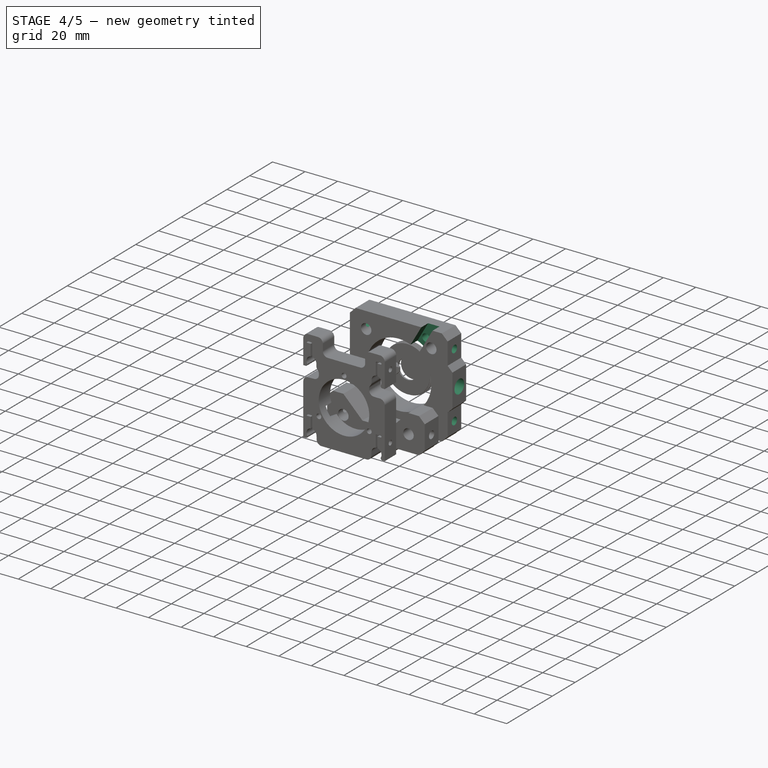
[diagram: stage 4 of 5 — iso view after this stage's code; geometry added in this stage tinted green]
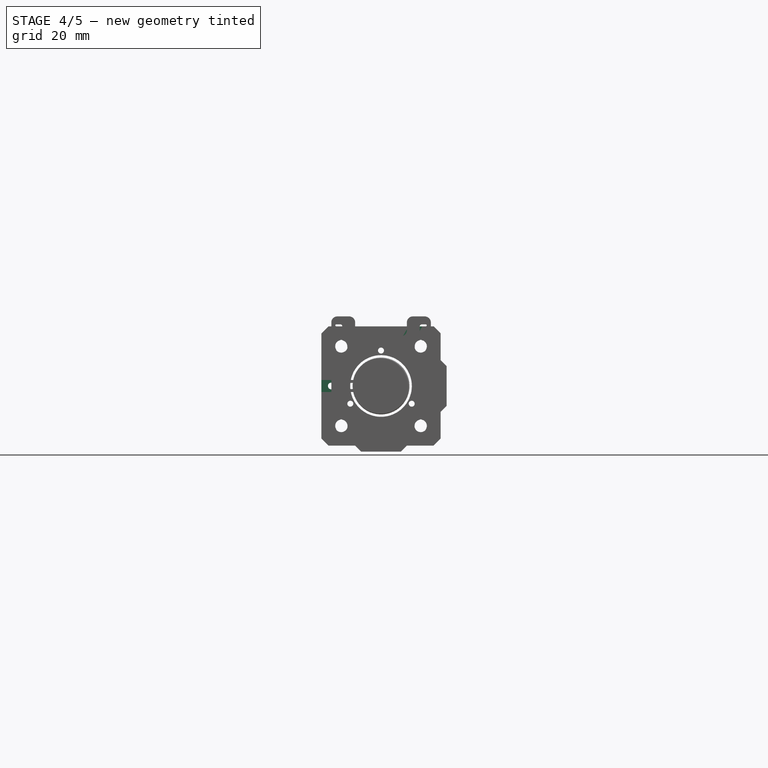
[diagram: stage 4 of 5 — front view after this stage's code; geometry added in this stage tinted green]
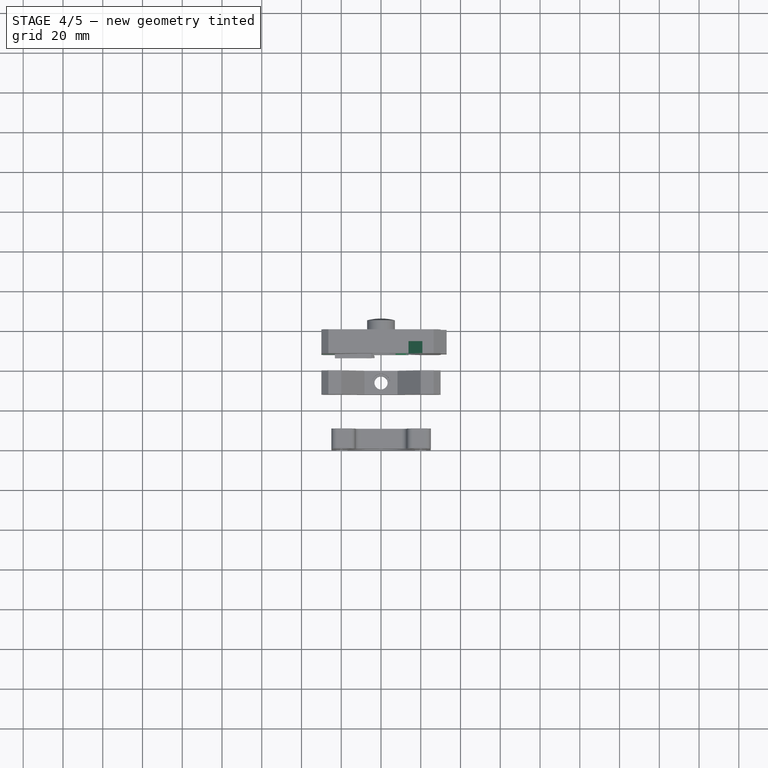
[diagram: stage 4 of 5 — top view after this stage's code; geometry added in this stage tinted green]
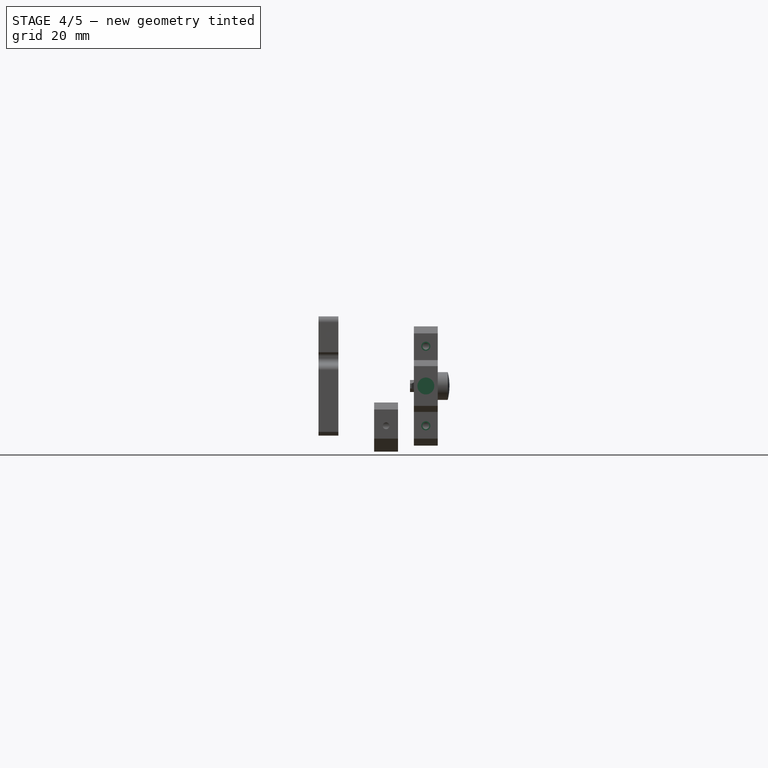
[diagram: stage 4 of 5 — right view after this stage's code; geometry added in this stage tinted green]
FEATURE [PartDesign::Body] Body005  label="RodPlaceholderBody4"
  BaseFeature = -> Body002
  Group = -> [Clone003]
  Origin = -> Origin005
  Tip = -> Clone003
FEATURE [PartDesign::Plane] DatumPlane001
  AttachmentOffset = pos=(0,0,12) rot=(0,0,1;0rad)
  Length = 75.2963
  MapMode = 2
  Placement = pos=(0,-12,-2.7e-15) rot=(1,0,0;1.5708rad)
  ResizeMode = 0
  Support = -> [XZ_Plane]
  Width = 72.2964
  expr: .AttachmentOffset.Base.z = Spreadsheet.endplatedepth
FEATURE [Sketcher::SketchObject] Sketch003  label="ClampChannelSketch"
  FullyConstrained = false
  MapMode = 5
  Placement = pos=(0,-12,-2.7e-15) rot=(1,0,0;1.5708rad)
  Support = -> [DatumPlane001]
  expr: Constraints[6] = Spreadsheet.fingerclampwidth
  sketch-geometry (16):
    g0: LineSegment StartX=0 StartY=0 StartZ=0 EndX=24.9874 EndY=43.2794 EndZ=0
    g1: LineSegment StartX=0 StartY=0 StartZ=0 EndX=-49.8713 EndY=0 EndZ=0
    g2: LineSegment StartX=0 StartY=0 StartZ=0 EndX=24.9888 EndY=-43.2818 EndZ=0
    g3: LineSegment StartX=24.9465 StartY=37.2087 StartZ=0 EndX=9.94655 EndY=11.2279 EndZ=0
    g4: LineSegment StartX=9.94655 StartY=-11.2279 StartZ=0 EndX=24.9465 EndY=-37.2087 EndZ=0
    g5: LineSegment StartX=4.75039 StartY=-14.2279 StartZ=0 EndX=19.7504 EndY=-40.2087 EndZ=0
    g6: LineSegment StartX=-44.6969 StartY=-3 StartZ=0 EndX=-14.6969 EndY=-3 EndZ=0
    g7: LineSegment StartX=19.7504 StartY=40.2087 StartZ=0 EndX=4.75039 EndY=14.2279 EndZ=0
    g8: LineSegment StartX=-14.6969 StartY=3 StartZ=0 EndX=-44.6969 EndY=3 EndZ=0
    g9: LineSegment StartX=19.7504 StartY=40.2087 StartZ=0 EndX=24.9465 EndY=37.2087 EndZ=0
    g10: LineSegment StartX=24.9465 StartY=-37.2087 StartZ=0 EndX=19.7504 EndY=-40.2087 EndZ=0
    g11: LineSegment StartX=-44.6969 StartY=-3 StartZ=0 EndX=-44.6969 EndY=3 EndZ=0
    g12: LineSegment StartX=-14.6969 StartY=3 StartZ=0 EndX=-14.6969 EndY=-3 EndZ=0
    g13: LineSegment StartX=4.75039 StartY=-14.2279 StartZ=0 EndX=9.94655 EndY=-11.2279 EndZ=0
    g14: LineSegment StartX=9.94655 StartY=11.2279 StartZ=0 EndX=4.75039 EndY=14.2279 EndZ=0
    g15: Circle CenterX=0 CenterY=0 CenterZ=0 NormalX=0 NormalY=0 NormalZ=1 AngleXU=0 Radius=15
  constraints (38):
    c: Coincident(g1,g0)
    c: Coincident(g2,g0)
    c: Angle(g1,g2) = 2.0944
    c: Angle(g0,g1) = 2.0944
    c: Coincident(g0,g-1)
    c: PointOnObject(g1,g-1)
    c: Distance(g7,g3) = 6
    c: Symmetric(g7,g3,g0)
    c: Parallel(g7,g3)
    c: Symmetric(g4,g5,g2)
    c: Parallel(g4,g5)
    c: Parallel(g6,g8)
    c: Symmetric(g8,g6,g1)
    c: Coincident(g9,g7)
    c: Coincident(g9,g3)
    c: Coincident(g10,g4)
    c: Coincident(g10,g5)
    c: Coincident(g11,g6)
    c: Coincident(g11,g8)
    c: Coincident(g7,g14)
    c: Coincident(g3,g14)
    c: Coincident(g4,g13)
    c: Coincident(g5,g13)
    c: Coincident(g6,g12)
    c: Coincident(g8,g12)
    c: Symmetric(g7,g3,g0)
    c: Symmetric(g4,g5,g2)
    c: Symmetric(g8,g6,g1)
    c: Coincident(g15,g0)
    c: PointOnObject(g3,g15)
    c: PointOnObject(g5,g15)
    c: PointOnObject(g6,g15)
    c: Equal(g9,g10)
    c: Equal(g10,g11)
    c: Diameter(g15) = 30
    c: Equal(g7,g6)
    c: Equal(g6,g5)
    c: DistanceX(g6,g6) = 30
FEATURE [PartDesign::Pocket] Pocket
  BaseFeature = -> Pad
  Direction = (0,1,2e-16)
  Length = 6
  Length2 = 5
  Placement = pos=(0,0,0) rot=(1,0,0;1.5708rad)
  Profile = -> Sketch003
  ReferenceAxis = -> Sketch003 [N_Axis]
  Refine = true
  Type = 0
  expr: Length = Spreadsheet.endplatedepth / 2
FEATURE [PartDesign::Plane] DatumPlane002
  AttachmentOffset = pos=(0,0,6) rot=(0,0,1;0rad)
  Length = 60
  MapMode = 5
  Placement = pos=(0,-6,-1.3e-15) rot=(1,0,0;1.5708rad)
  ResizeMode = 0
  Support = -> [XZ_Plane006]
  Width = 60
  expr: .AttachmentOffset.Base.z = Spreadsheet.endplatedepth / 2
FEATURE [Part::Part2DObjectPython] Clone2D002  label="MasterSketch (2D)002"  # Draft 2D object (typed FeaturePython)
  Fuse = false
  Objects = -> [Sketch]
  Placement = pos=(0,0,0) rot=(1,0,0;1.5708rad)
  Scale = (1,1,1)
FEATURE [Sketcher::SketchObject] Sketch004
  ExternalGeometry = -> [Clone2D002]
  FullyConstrained = true
  MapMode = 5
  Placement = pos=(0,-6,-1.3e-15) rot=(1,0,0;1.5708rad)
  Support = -> [DatumPlane002]
  expr: Constraints[7] = Spreadsheet.fingerclamplength
  expr: Constraints[8] = Spreadsheet.fingerclampwidth
  sketch-geometry (10):
    g0: LineSegment StartX=-23.2426 StartY=3 StartZ=0 EndX=-5 EndY=3 EndZ=0
    g1: LineSegment StartX=-5 StartY=3 StartZ=0 EndX=-3.24264 EndY=1.24264 EndZ=0
    g2: LineSegment StartX=-3.24264 StartY=1.24264 StartZ=0 EndX=-3.24264 EndY=-1.24264 EndZ=0
    g3: LineSegment StartX=-3.24264 StartY=-1.24264 StartZ=0 EndX=-5 EndY=-3 EndZ=0
    g4: LineSegment StartX=-5 StartY=-3 StartZ=0 EndX=-23.2426 EndY=-3 EndZ=0
    g5: LineSegment StartX=-23.2426 StartY=-3 StartZ=0 EndX=-23.2426 EndY=3 EndZ=0
    g6: ArcOfCircle CenterX=-19.2426 CenterY=0 CenterZ=0 NormalX=0 NormalY=0 NormalZ=1 AngleXU=0 Radius=1.55 StartAngle=1.5708 EndAngle=4.71239
    g7: ArcOfCircle CenterX=-8.24264 CenterY=0 CenterZ=0 NormalX=0 NormalY=0 NormalZ=1 AngleXU=0 Radius=1.55 StartAngle=4.71239 EndAngle=7.85398
    g8: LineSegment StartX=-19.2426 StartY=-1.55 StartZ=0 EndX=-8.24264 EndY=-1.55 EndZ=0
    g9: LineSegment StartX=-8.24264 StartY=1.55 StartZ=0 EndX=-19.2426 EndY=1.55 EndZ=0
  constraints (25):
    c: Horizontal(g0)
    c: Coincident(g0,g1)
    c: Coincident(g1,g2)
    c: Coincident(g2,g3)
    c: Coincident(g3,g4)
    c: Coincident(g4,g5)
    c: Coincident(g5,g0)
    c: DistanceX(g4,g2) = 20
    c: DistanceY(g5,g5) = 6
    c: Symmetric(g0,g4,g-3)
    c: Symmetric(g1,g2,g-3)
    c: Angle(g0,g1) = 2.35619
    c: Symmetric(g0,g3,g-3)
    c: Equal(g1,g2)
    c: Tangent(g6,g8) = -1.5708
    c: Tangent(g8,g7) = -1.5708
    c: Tangent(g7,g9) = -1.5708
    c: Tangent(g9,g6) = -1.5708
    c: Equal(g6,g7)
    c: PointOnObject(g7,g-3)
    c: Radius(g7) = 1.55
    c: DistanceX(g4,g6) = 4
    c: DistanceX(g7,g2) = 5
    c: PointOnObject(g6,g-3)
    c: DistanceX(g3,g-3) = 5
FEATURE [PartDesign::Plane] DatumPlane003
  AttachmentOffset = pos=(0,0,6) rot=(0,0,1;0rad)
  Length = 75.2963
  MapMode = 2
  Placement = pos=(0,-6,-1.3e-15) rot=(1,0,0;1.5708rad)
  ResizeMode = 0
  Support = -> [XZ_Plane]
  Width = 72.2964
  expr: .AttachmentOffset.Base.z = Spreadsheet.endplatedepth / 2
FEATURE [Sketcher::SketchObject] Sketch005  label="ClampScrewHoleSketch"
  ExternalGeometry = -> [Clone2D]
  FullyConstrained = true
  MapMode = 5
  Placement = pos=(0,-6,-1.3e-15) rot=(1,0,0;1.5708rad)
  Support = -> [DatumPlane003]
  expr: Constraints[1] = Spreadsheet.baseouterdim / 2 + Spreadsheet.maxopticdiameter / 2
  sketch-geometry (4):
    g0: Circle CenterX=0 CenterY=0 CenterZ=0 NormalX=0 NormalY=0 NormalZ=1 AngleXU=0 Radius=25
    g1: Circle CenterX=-25 CenterY=0 CenterZ=0 NormalX=0 NormalY=0 NormalZ=1 AngleXU=0 Radius=1.5
    g2: Circle CenterX=12.5 CenterY=21.6506 CenterZ=0 NormalX=0 NormalY=0 NormalZ=1 AngleXU=0 Radius=1.5
    g3: Circle CenterX=12.5 CenterY=-21.6506 CenterZ=0 NormalX=0 NormalY=0 NormalZ=1 AngleXU=0 Radius=1.5
  constraints (11):
    c: Coincident(g0,g-1)
    c: Diameter(g0) = 50
    c: PointOnObject(g1,g0)
    c: PointOnObject(g2,g0)
    c: Equal(g1,g2)
    c: Diameter(g1) = 3
    c: PointOnObject(g3,g0)
    c: Equal(g2,g3)
    c: PointOnObject(g1,g-1)
    c: PointOnObject(g3,g-4)
    c: PointOnObject(g2,g-3)
FEATURE [PartDesign::Hole] Hole  label="ClampScrewHole"
  BaseFeature = -> Pocket
  CustomThreadClearance = 0
  Depth = 25
  DepthType = 0
  Diameter = 3.4
  DrillForDepth = false
  DrillPoint = 1
  DrillPointAngle = 118
  HoleCutCountersinkAngle = 90
  HoleCutCustomValues = false
  HoleCutDepth = 5
  HoleCutDiameter = 4.6
  HoleCutType = 1
  ModelThread = false
  Placement = pos=(0,0,0) rot=(1,0,0;1.5708rad)
  Profile = -> Sketch005
  Refine = true
  Tapered = false
  TaperedAngle = 90
  ThreadClass = 0
  ThreadDepth = 25
  ThreadDepthType = 0
  ThreadDirection = 0
  ThreadFit = 0
  ThreadSize = 9
  ThreadType = 1
  Threaded = false
  UseCustomThreadClearance = false
FEATURE [PartDesign::Hole] Hole001
  BaseFeature = -> Hole
  CustomThreadClearance = 0
  Depth = 10
  DepthType = 0
  Diameter = 3.4
  DrillForDepth = false
  DrillPoint = 1
  DrillPointAngle = 118
  HoleCutCountersinkAngle = 90
  HoleCutCustomValues = false
  HoleCutDepth = 5
  HoleCutDiameter = 4.6
  HoleCutType = 1
  ModelThread = false
  Placement = pos=(0,0,0) rot=(1,0,0;1.5708rad)
  Profile = -> Sketch006
  Refine = true
  Tapered = false
  TaperedAngle = 90
  ThreadClass = 0
  ThreadDepth = 10
  ThreadDepthType = 0
  ThreadDirection = 0
  ThreadFit = 0
  ThreadSize = 9
  ThreadType = 1
  Threaded = false
  UseCustomThreadClearance = false
FEATURE [PartDesign::Plane] DatumPlane005
  AttachmentOffset = pos=(0,0,-30) rot=(0,0,1;0rad)
  Length = 60.9545
  MapMode = 5
  Placement = pos=(-30,6.7e-15,-6.7e-15) rot=(0.57735,0.57735,0.57735;2.0944rad)
  ResizeMode = 0
  Support = -> [YZ_Plane]
  Width = 70.9545
  expr: .AttachmentOffset.Base.z = -Spreadsheet.baseouterdim / 2
FEATURE [Sketcher::SketchObject] Sketch007
  FullyConstrained = true
  MapMode = 5
  Placement = pos=(-30,6.7e-15,-6.7e-15) rot=(0.57735,0.57735,0.57735;2.0944rad)
  Support = -> [DatumPlane005]
  expr: Constraints[0] = Spreadsheet.endplatedepth / 2
  expr: Constraints[7] = Spreadsheet.cagedim / 2
  sketch-geometry (3):
    g0: LineSegment StartX=-6 StartY=50 StartZ=0 EndX=-6 EndY=-50 EndZ=0
    g1: Circle CenterX=-6 CenterY=20 CenterZ=0 NormalX=0 NormalY=0 NormalZ=1 AngleXU=0 Radius=1.5
    g2: Circle CenterX=-6 CenterY=-20 CenterZ=0 NormalX=0 NormalY=0 NormalZ=1 AngleXU=0 Radius=1.5
  constraints (8):
    c: DistanceX(g0,g-1) = 6
    c: Symmetric(g0,g0,g-1)
    c: Distance(g0) = 100
    c: PointOnObject(g1,g0)
    c: Equal(g2,g1)
    c: Diameter(g2) = 3
    c: Symmetric(g1,g2,g-1)
    c: DistanceY(g2,g-1) = 20
FEATURE [PartDesign::Hole] Hole002
  BaseFeature = -> Hole001
  CustomThreadClearance = 0
  Depth = 10
  DepthType = 0
  Diameter = 3.4
  DrillForDepth = false
  DrillPoint = 0
  DrillPointAngle = 118
  HoleCutCountersinkAngle = 90
  HoleCutCustomValues = false
  HoleCutDepth = 5
  HoleCutDiameter = 4.6
  HoleCutType = 1
  ModelThread = false
  Placement = pos=(0,0,0) rot=(1,0,0;1.5708rad)
  Profile = -> Sketch007
  Refine = true
  Reversed = true
  Tapered = false
  TaperedAngle = 90
  ThreadClass = 0
  ThreadDepth = 10
  ThreadDepthType = 0
  ThreadDirection = 0
  ThreadFit = 0
  ThreadSize = 9
  ThreadType = 1
  Threaded = false
  UseCustomThreadClearance = false
FEATURE [PartDesign::Plane] DatumPlane006
  AttachmentOffset = pos=(0,0,33) rot=(0,0,1;0rad)
  Length = 60.9545
  MapMode = 5
  Placement = pos=(33,-7.3e-15,7.3e-15) rot=(0.57735,0.57735,0.57735;2.0944rad)
  ResizeMode = 0
  Support = -> [YZ_Plane]
  Width = 70.9545
  expr: .AttachmentOffset.Base.z = Spreadsheet.baseouterdim / 2 + Spreadsheet.footheight
FEATURE [Sketcher::SketchObject] Sketch008
  FullyConstrained = true
  MapMode = 5
  Placement = pos=(33,-7.3e-15,7.3e-15) rot=(0.57735,0.57735,0.57735;2.0944rad)
  Support = -> [DatumPlane006]
  expr: Constraints[1] = Spreadsheet.endplatedepth / 2
  sketch-geometry (1):
    g0: Circle CenterX=-6 CenterY=0 CenterZ=0 NormalX=0 NormalY=0 NormalZ=1 AngleXU=0 Radius=3
  constraints (3):
    c: PointOnObject(g0,g-1)
    c: DistanceX(g0,g-1) = 6
    c: Diameter(g0) = 6
FEATURE [PartDesign::Hole] Hole003
  BaseFeature = -> Hole002
  CustomThreadClearance = 0
  Depth = 12
  DepthType = 0
  Diameter = 6.6
  DrillForDepth = false
  DrillPoint = 0
  DrillPointAngle = 118
  HoleCutCountersinkAngle = 90
  HoleCutCustomValues = false
  HoleCutDepth = 6.4
  HoleCutDiameter = 8.5
  HoleCutType = 1
  ModelThread = false
  Placement = pos=(0,0,0) rot=(1,0,0;1.5708rad)
  Profile = -> Sketch008
  Refine = true
  Tapered = false
  TaperedAngle = 90
  ThreadClass = 0
  ThreadDepth = 12
  ThreadDepthType = 0
  ThreadDirection = 0
  ThreadFit = 0
  ThreadSize = 14
  ThreadType = 1
  Threaded = false
  UseCustomThreadClearance = false
FEATURE [PartDesign::Fillet] Fillet002
  Base = -> Hole003 [Edge25,Edge30,Edge32,Edge27]
  BaseFeature = -> Hole003
  Placement = pos=(0,0,0) rot=(1,0,0;1.5708rad)
  Radius = 1
  Refine = true
  SupportTransform = false
  UseAllEdges = false
FEATURE [PartDesign::Body] Body006  label="FingerClampBody"
  Group = -> [DatumPlane002,Sketch004,Clone2D002,Pad002,Sketch009,Pocket001]
  Origin = -> Origin006
  Tip = -> Pocket001
FEATURE [PartDesign::FeatureBase] Clone004
  BaseFeature = -> Body006
FEATURE [PartDesign::Body] Body007  label="FingerClampPlaceholderBody2"
  BaseFeature = -> Body006
  Group = -> [Clone004]
  Origin = -> Origin007
  Placement = pos=(0,0,0) rot=(0,1,0;2.0944rad)
  Tip = -> Clone004
FEATURE [PartDesign::FeatureBase] Clone005
  BaseFeature = -> Body006
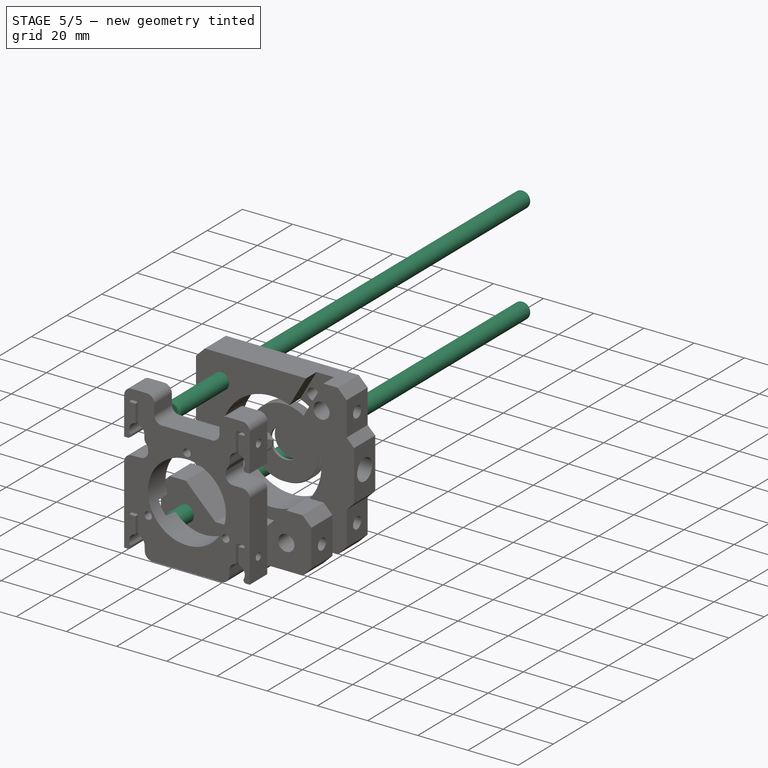
[diagram: stage 5 of 5 — iso view after this stage's code; geometry added in this stage tinted green]
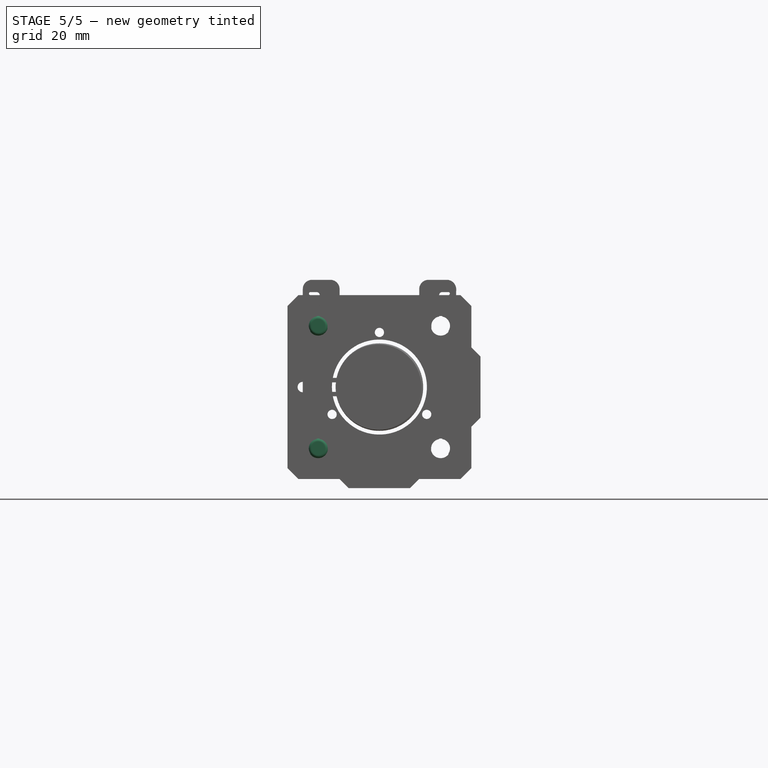
[diagram: stage 5 of 5 — front view after this stage's code; geometry added in this stage tinted green]
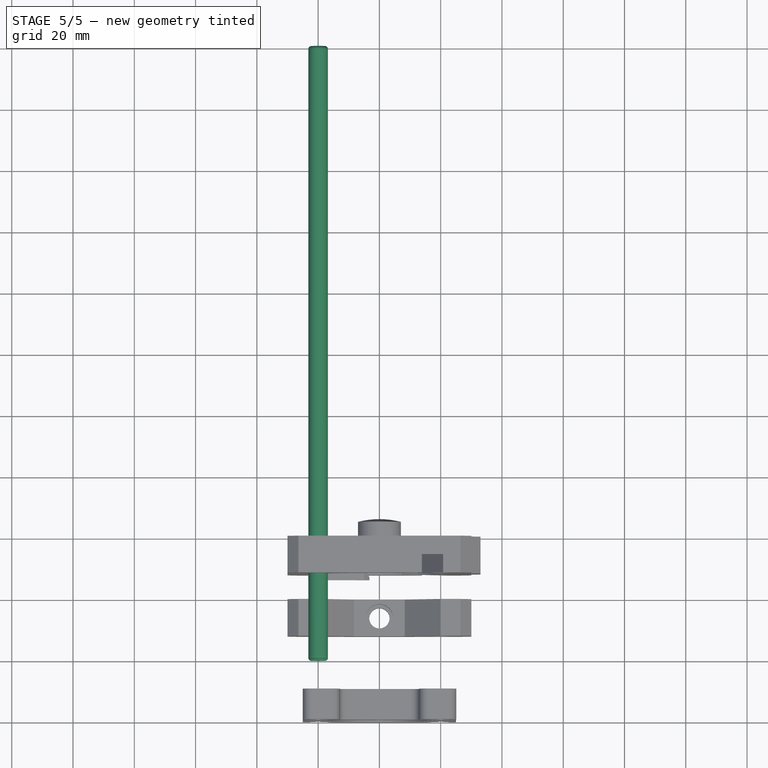
[diagram: stage 5 of 5 — top view after this stage's code; geometry added in this stage tinted green]
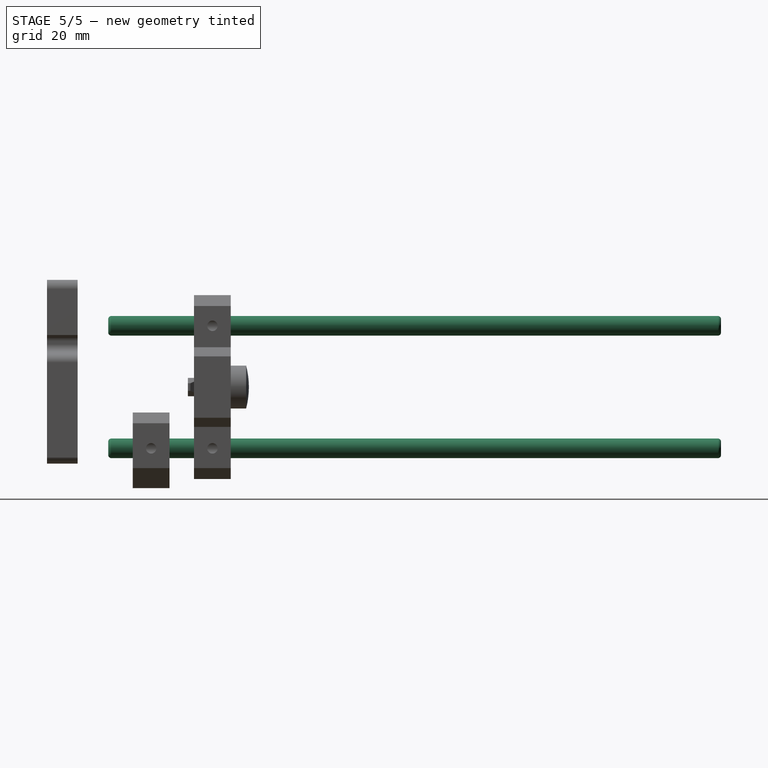
[diagram: stage 5 of 5 — right view after this stage's code; geometry added in this stage tinted green]
FEATURE [Part::Part2DObjectPython] Clone2D001  label="MasterSketch (2D)001"  # Draft 2D object (typed FeaturePython)
  Fuse = false
  Objects = -> [Sketch]
  Placement = pos=(0,0,0) rot=(1,0,0;1.5708rad)
  Scale = (1,1,1)
FEATURE [PartDesign::Plane] DatumPlane
  AttachmentOffset = pos=(0,10,40) rot=(0,0,1;0rad)
  Length = 60
  MapMode = 5
  Placement = pos=(0,-40,10) rot=(1,0,0;1.5708rad)
  ResizeMode = 0
  Support = -> [XZ_Plane002]
  Width = 60
FEATURE [Sketcher::SketchObject] Sketch002
  AttachmentOffset = pos=(0,60,0) rot=(0,0,1;0rad)
  ExternalGeometry = -> [Clone2D001]
  FullyConstrained = true
  MapMode = 2
  Placement = pos=(0,-40,70) rot=(1,0,0;1.5708rad)
  Support = -> [DatumPlane]
  sketch-geometry (1):
    g0: Circle CenterX=20 CenterY=-50 CenterZ=0 NormalX=0 NormalY=0 NormalZ=1 AngleXU=0 Radius=3.2
  constraints (2):
    c: Coincident(g0,g-3)
    c: Equal(g0,g-3)
FEATURE [PartDesign::Pad] Pad001
  Direction = (0,-1,-2e-16)
  Length = 200
  Length2 = 10
  Placement = pos=(0,-40,10) rot=(1,0,0;1.5708rad)
  Profile = -> Sketch002
  ReferenceAxis = -> Sketch002 [N_Axis]
  Refine = true
  Reversed = true
  Type = 0
FEATURE [PartDesign::Fillet] Fillet
  Base = -> Pad001 [Edge2]
  BaseFeature = -> Pad001
  Placement = pos=(0,-40,10) rot=(1,0,0;1.5708rad)
  Radius = 1
  Refine = true
  SupportTransform = false
  UseAllEdges = false
FEATURE [PartDesign::Fillet] Fillet001
  Base = -> Fillet [Edge3]
  BaseFeature = -> Fillet
  Placement = pos=(0,-40,10) rot=(1,0,0;1.5708rad)
  Radius = 1
  Refine = true
  SupportTransform = false
  UseAllEdges = false
FEATURE [PartDesign::Body] Body002  label="RodPlaceholderBody1"
  Group = -> [Clone2D001,Sketch002,Pad001,DatumPlane,Fillet,Fillet001]
  Origin = -> Origin002
  Tip = -> Fillet001
FEATURE [PartDesign::FeatureBase] Clone001
  BaseFeature = -> Body002
  Placement = pos=(0,0,0) rot=(0,1,0;1.5708rad)
FEATURE [PartDesign::Body] Body003  label="RodPlaceholderBody2"
  BaseFeature = -> Body002
  Group = -> [Clone001]
  Origin = -> Origin003
  Tip = -> Clone001
FEATURE [PartDesign::FeatureBase] Clone002
  BaseFeature = -> Body003
  Placement = pos=(0,0,0) rot=(0,1,0;1.5708rad)
FEATURE [PartDesign::Body] Body004  label="RodPlaceholderBody3"
  BaseFeature = -> Body003
  Group = -> [Clone002]
  Origin = -> Origin004
  Tip = -> Clone002
FEATURE [PartDesign::FeatureBase] Clone003
  BaseFeature = -> Body002
  Placement = pos=(0,0,0) rot=(0,-1,0;1.5708rad)
FEATURE [PartDesign::Body] Body  label="EndPlateBody"
  Group = -> [Sketch001,Clone2D,Pad,DatumPlane001,Sketch003,Pocket,DatumPlane003,Sketch005,Hole,DatumPlane004,Sketch006,Hole001,DatumPlane005,Sketch007,Hole002,DatumPlane006,Sketch008,Hole003,Fillet002]
  Origin = -> Origin
  Tip = -> Fillet002
FEATURE [PartDesign::FeatureBase] Clone
  BaseFeature = -> Body
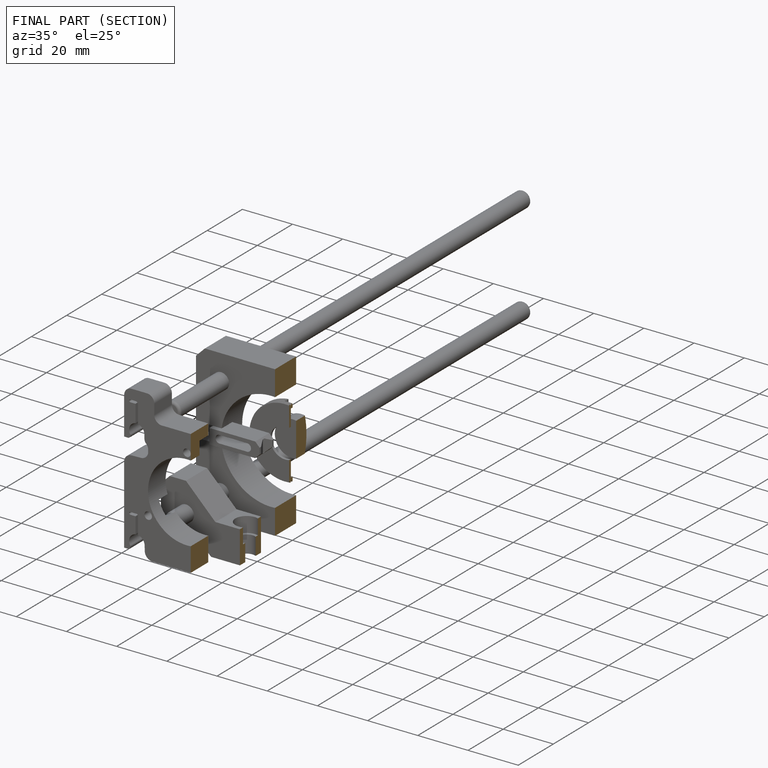
[diagram: finished part — half-section view (interior)]
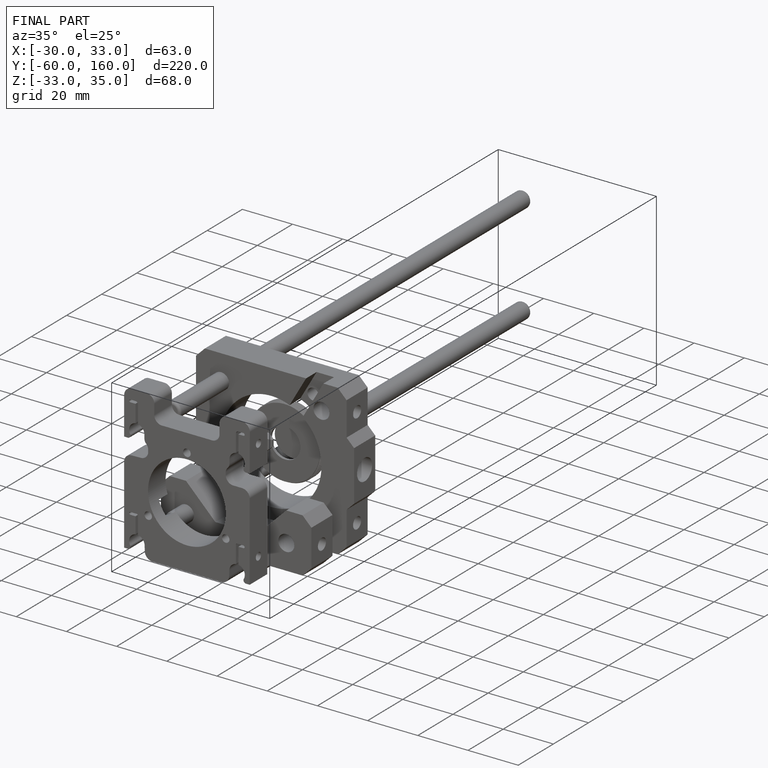
[diagram: finished part — iso view with bounding-box wireframe]
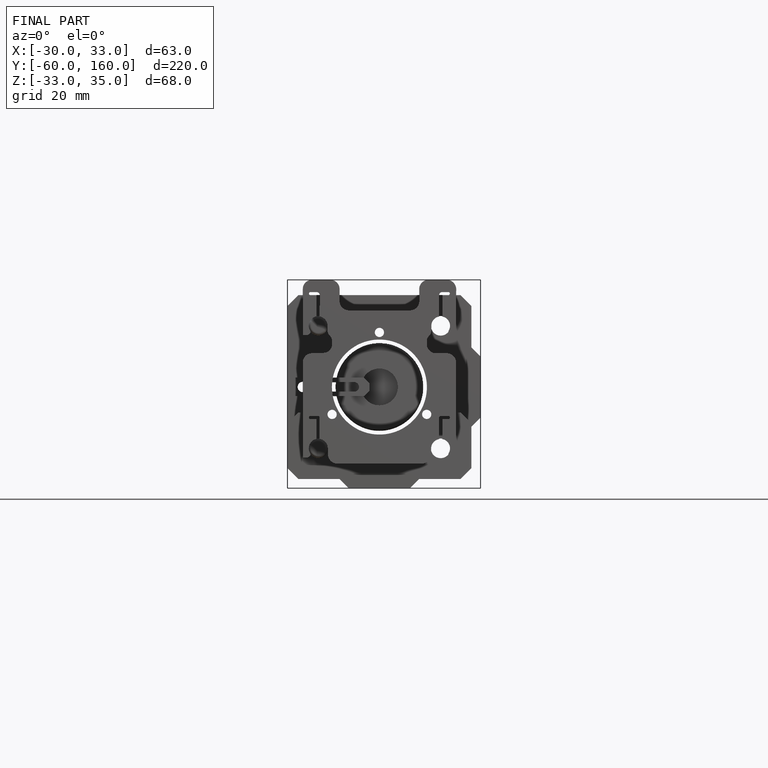
[diagram: finished part — front view with bounding-box wireframe]
